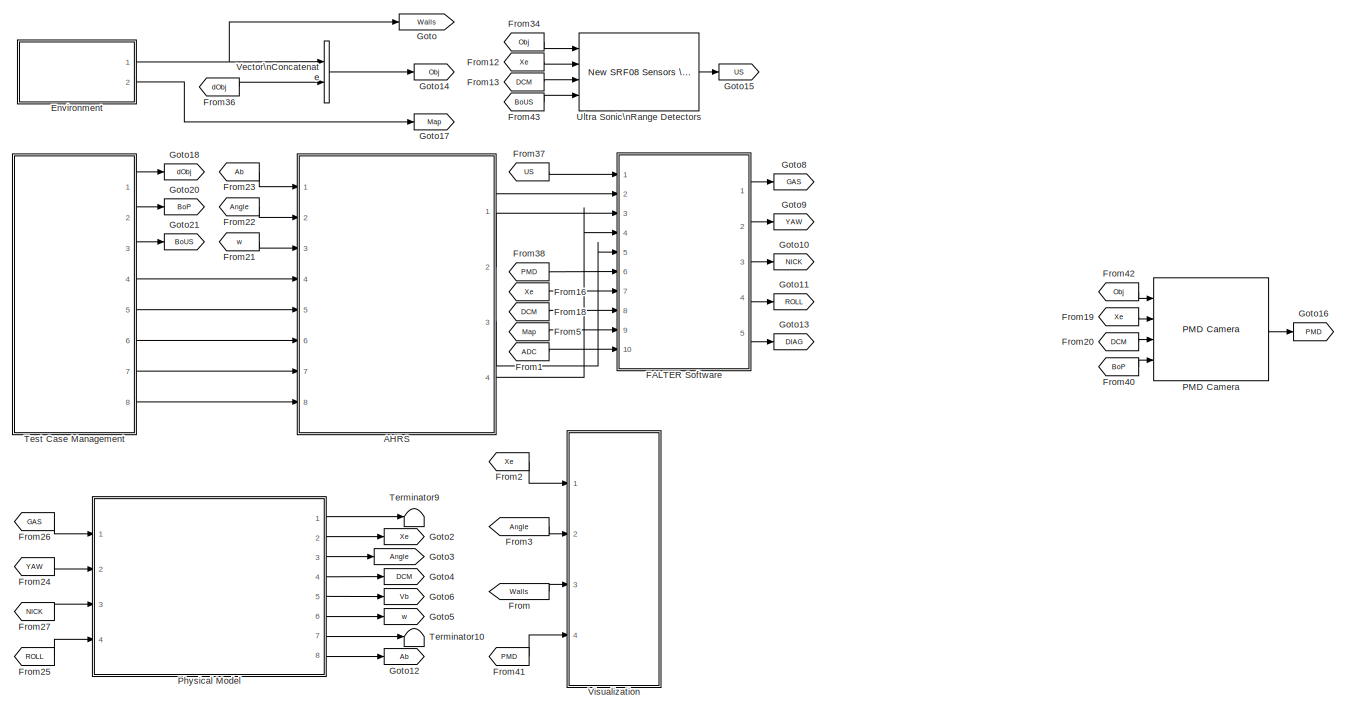
[diagram: root canvas - part 1/4, top center region]
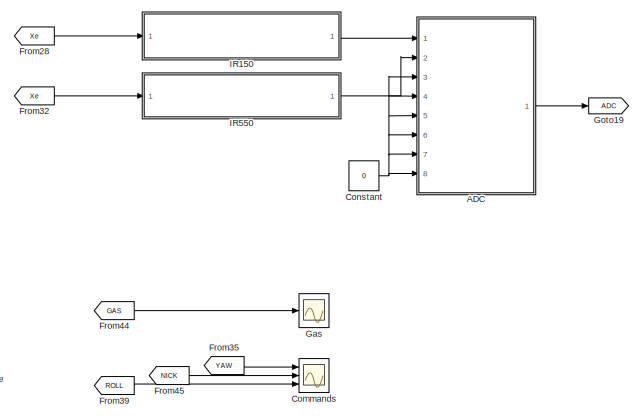
[diagram: root canvas - part 2/4, middle right region]
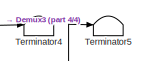
[diagram: root canvas - part 3/4, middle left region]
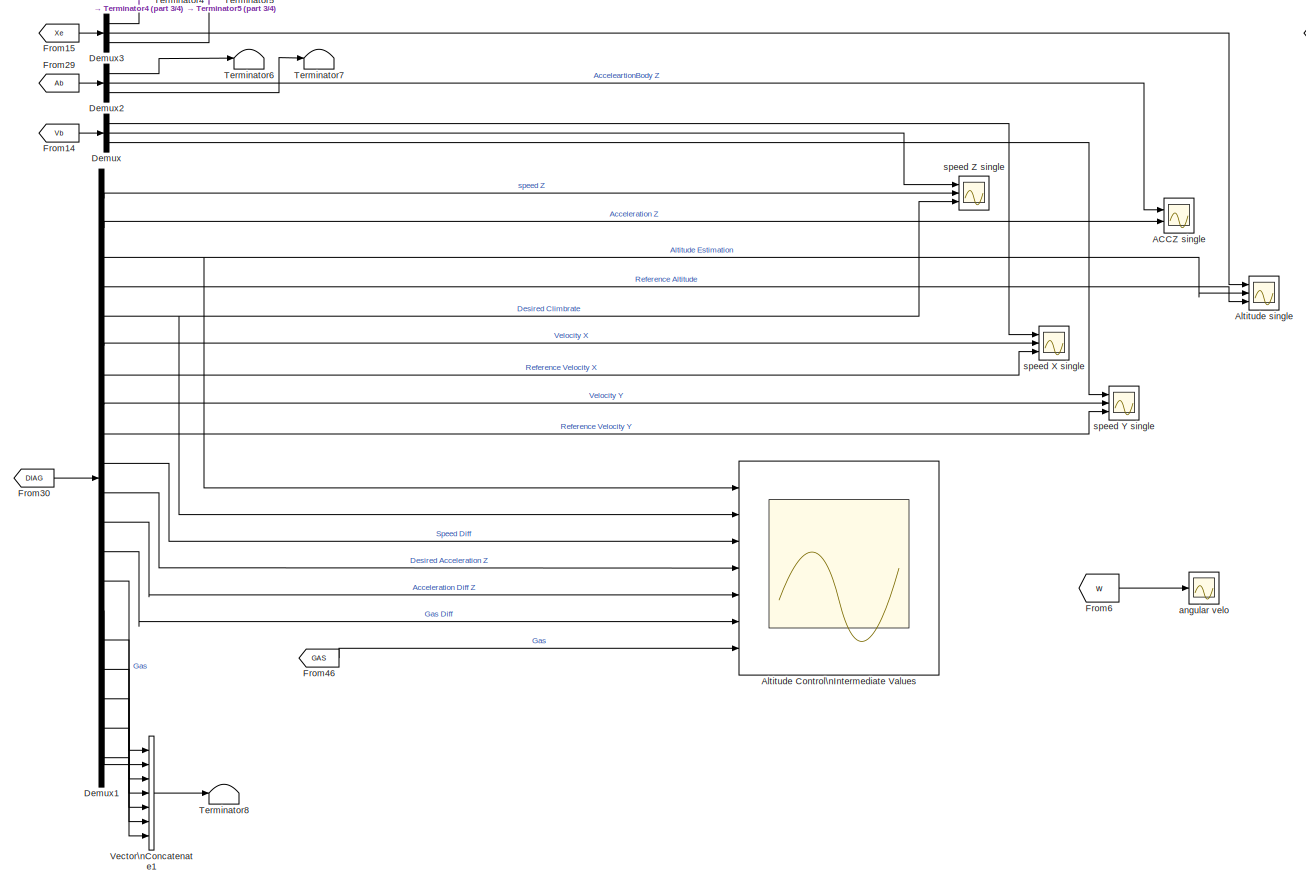
[diagram: root canvas - part 4/4, bottom center region]
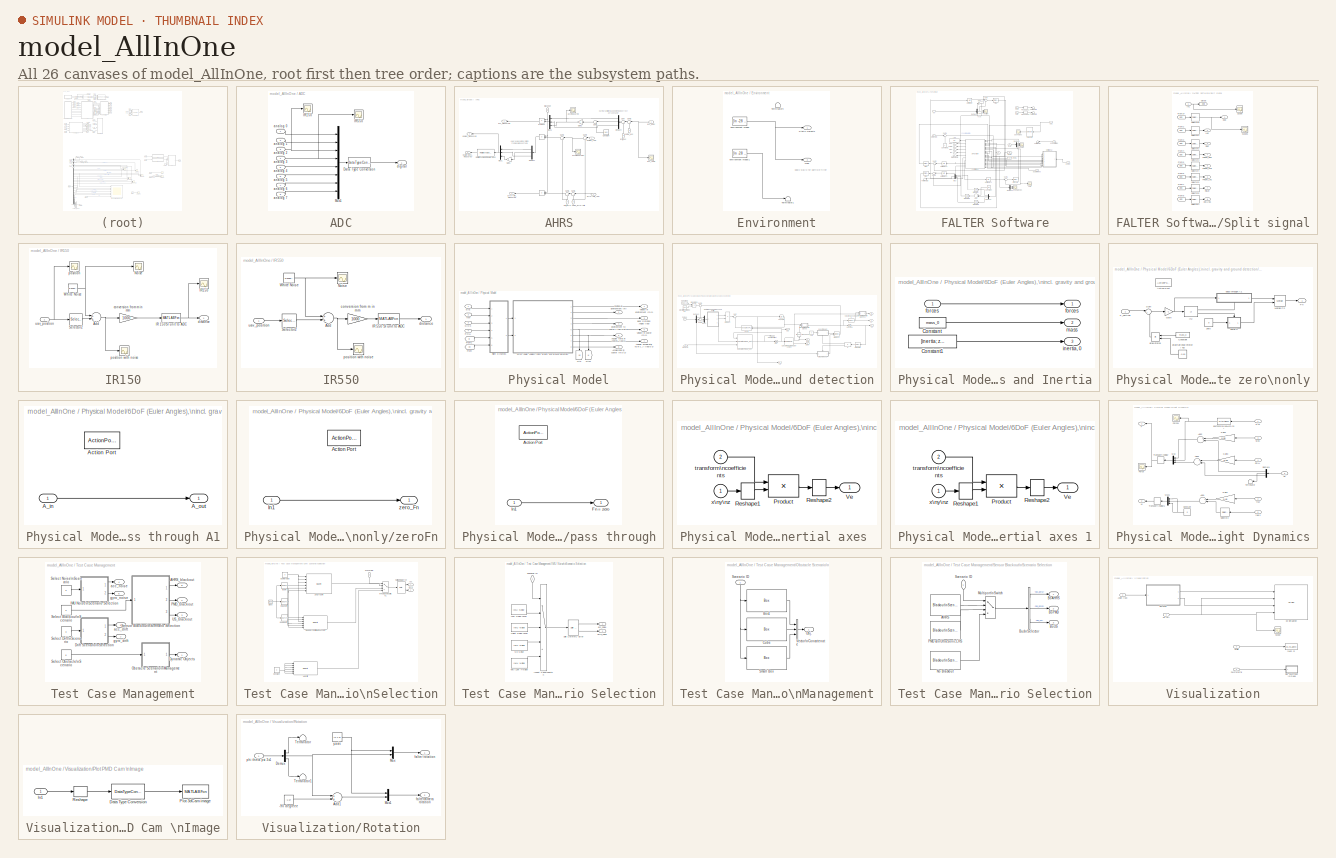
[diagram: thumbnail index - all 26 canvases of the model, root first then tree order]
MODEL model_AllInOne
KIND model
BLOCK [Scope] ACCZ single
  DataFormat = StructureWithTime
  Floating = off
  NumInputPorts = 2
  Ports = [2]
  SID = 2930
  SampleInput = on
  SampleTime = 0
  SaveName = ScopeData4
  ShowLegends = on
  TimeRange = 5
  YMax = -8.7~9.7343
  YMin = -9.9~9.7331
BLOCK [SubSystem] ADC
  Commented = on
  FunctionWithSeparateData = off
  MaskHideContents = off
  MinAlgLoopOccurrences = off
  Opaque = off
  Ports = [8, 1]
  PropExecContextOutsideSubsystem = off
  RTWSystemCode = Auto
  RequestExecContextInheritance = off
  SID = 2961
BLOCK [DataTypeConversion] ADC/Data Type Conversion
  OutDataTypeStr = uint32
  OutMax = 1023
  OutMin = 0
  RndMeth = Floor
  SID = 2995
  SaturateOnIntegerOverflow = off
BLOCK [Scope] ADC/IR150
  DataFormat = StructureWithTime
  Floating = off
  NumInputPorts = 1
  Ports = [1]
  SID = 3001
  SampleInput = on
  SampleTime = 0
  SaveName = ScopeData9
  ShowLegends = off
  TimeRange = 7.5
  YMax = 0
  YMin = -0.85
BLOCK [Scope] ADC/IR550
  DataFormat = StructureWithTime
  Floating = off
  NumInputPorts = 1
  Ports = [1]
  SID = 3000
  SampleInput = on
  SampleTime = 0
  SaveName = ScopeData6
  ShowLegends = off
  TimeRange = 7.5
  YMax = 0
  YMin = -0.85
BLOCK [Mux] ADC/Mux1
  DisplayOption = bar
  Inputs = 8
  Ports = [8, 1]
  SID = 2973
BLOCK [Inport] ADC/analog 0
  IconDisplay = Port number
  SID = 2962
BLOCK [Inport] ADC/analog 1
  IconDisplay = Port number
  Port = 2
  SID = 2964
BLOCK [Inport] ADC/analog 2
  IconDisplay = Port number
  Port = 3
  SID = 2965
BLOCK [Inport] ADC/analog 3
  IconDisplay = Port number
  Port = 4
  SID = 2966
BLOCK [Inport] ADC/analog 4
  IconDisplay = Port number
  Port = 5
  SID = 2967
BLOCK [Inport] ADC/analog 5
  IconDisplay = Port number
  Port = 6
  SID = 2968
BLOCK [Inport] ADC/analog 6
  IconDisplay = Port number
  Port = 7
  SID = 2969
BLOCK [Inport] ADC/analog 7
  IconDisplay = Port number
  Port = 8
  SID = 2970
BLOCK [Outport] ADC/digital
  IconDisplay = Port number
  SID = 2963
BLOCK [SubSystem] AHRS
  FunctionWithSeparateData = off
  MaskHideContents = off
  MinAlgLoopOccurrences = off
  Opaque = off
  Ports = [8, 4]
  PropExecContextOutsideSubsystem = off
  RTWSystemCode = Auto
  RequestExecContextInheritance = off
  SID = 641
BLOCK [Product] AHRS/ 
  InputSameDT = off
  OutDataTypeStr = Inherit: Inherit via internal rule
  Ports = [2, 1]
  SID = 739
  SaturateOnIntegerOverflow = off
BLOCK [Product] AHRS/   
  InputSameDT = off
  OutDataTypeStr = Inherit: Inherit via internal rule
  Ports = [2, 1]
  SID = 738
  SaturateOnIntegerOverflow = off
BLOCK [Inport] AHRS/Blackout
  IconDisplay = Port number
  Port = 8
  SID = 726
BLOCK [Constant] AHRS/Constant
  SID = 3080
  Value = 9.81
BLOCK [Demux] AHRS/Demux1
  DisplayOption = bar
  Outputs = 3
  Ports = [1, 3]
  SID = 2940
BLOCK [Demux] AHRS/Demux4
  DisplayOption = bar
  Outputs = 3
  Ports = [1, 3]
  SID = 589
BLOCK [Gain] AHRS/Gain1
  Gain = -1
  OutDataTypeStr = Inherit: Inherit via internal rule
  ParamDataTypeStr = Inherit: Inherit via internal rule
  SID = 3122
  SaturateOnIntegerOverflow = off
BLOCK [Gain] AHRS/Gain2
  Gain = -1
  OutDataTypeStr = Inherit: Inherit via internal rule
  ParamDataTypeStr = Inherit: Inherit via internal rule
  SID = 3086
  SaturateOnIntegerOverflow = off
BLOCK [Mux] AHRS/Mux1
  DisplayOption = bar
  Inputs = 3
  Ports = [3, 1]
  SID = 2941
BLOCK [Mux] AHRS/Mux5
  DisplayOption = bar
  Inputs = 3
  Ports = [3, 1]
  SID = 591
BLOCK [Product] AHRS/Product
  InputSameDT = off
  OutDataTypeStr = Inherit: Inherit via internal rule
  Ports = [2, 1]
  SID = 735
  SaturateOnIntegerOverflow = off
BLOCK [Reference] AHRS/Rotation Angles to Quaternions  REF=aerolibtransform2/Rotation Angles to Quaternions
  AttributesFormatString = Rotation Order: %<rotationOrder>
  Ports = [1, 1]
  SID = 2938
  SourceBlock = aerolibtransform2/Rotation Angles to Quaternions
  SourceType = Ang2Quat
  rotationOrder = XYZ
BLOCK [Sum] AHRS/Sum
  IconShape = round
  InputSameDT = off
  Inputs = |++
  OutDataTypeStr = Inherit: Inherit via internal rule
  Ports = [2, 1]
  SID = 592
  SaturateOnIntegerOverflow = off
BLOCK [Sum] AHRS/Sum1
  IconShape = round
  InputSameDT = off
  Inputs = |++
  OutDataTypeStr = Inherit: Inherit via internal rule
  Ports = [2, 1]
  SID = 3079
  SaturateOnIntegerOverflow = off
BLOCK [Sum] AHRS/Sum2
  IconShape = round
  InputSameDT = off
  Inputs = |++
  OutDataTypeStr = Inherit: Inherit via internal rule
  Ports = [2, 1]
  SID = 734
  SaturateOnIntegerOverflow = off
BLOCK [Sum] AHRS/Sum3
  IconShape = round
  InputSameDT = off
  Inputs = |++
  OutDataTypeStr = Inherit: Inherit via internal rule
  Ports = [2, 1]
  SID = 736
  SaturateOnIntegerOverflow = off
BLOCK [Sum] AHRS/Sum4
  IconShape = round
  InputSameDT = off
  Inputs = |++
  OutDataTypeStr = Inherit: Inherit via internal rule
  Ports = [2, 1]
  SID = 737
  SaturateOnIntegerOverflow = off
BLOCK [Sum] AHRS/Sum5
  IconShape = round
  InputSameDT = off
  Inputs = |++
  OutDataTypeStr = Inherit: Inherit via internal rule
  Ports = [2, 1]
  SID = 740
  SaturateOnIntegerOverflow = off
BLOCK [Sum] AHRS/Sum6
  IconShape = round
  InputSameDT = off
  Inputs = |++
  OutDataTypeStr = Inherit: Inherit via internal rule
  Ports = [2, 1]
  SID = 741
  SaturateOnIntegerOverflow = off
BLOCK [Scope] AHRS/acc measured
  DataFormat = StructureWithTime
  Floating = off
  NumInputPorts = 1
  Ports = [1]
  SID = 3082
  SampleInput = on
  SampleTime = 0
  SaveName = ScopeData1
  ShowLegends = off
  TimeRange = 7.5
  YMax = -5
  YMin = -11
BLOCK [Scope] AHRS/acc measured1
  DataFormat = StructureWithTime
  Floating = off
  NumInputPorts = 1
  Ports = [1]
  SID = 3153
  SampleInput = on
  SampleTime = 0
  SaveName = ScopeData18
  ShowLegends = off
  TimeRange = 7.5
  YMax = -5
  YMin = -11
BLOCK [Inport] AHRS/acc_body
  IconDisplay = Port number
  SID = 642
BLOCK [Outport] AHRS/acc_measured
  IconDisplay = Port number
  SID = 643
BLOCK [Scope] AHRS/acc_real1
  DataFormat = StructureWithTime
  Floating = off
  NumInputPorts = 1
  Ports = [1]
  SID = 3081
  SampleInput = on
  SampleTime = 0
  ShowLegends = off
  TimeRange = 7.5
  YMax = 0
  YMin = -0.85
BLOCK [Outport] AHRS/angles_measured
  IconDisplay = Port number
  Port = 2
  SID = 645
BLOCK [Inport] AHRS/angles_real
  IconDisplay = Port number
  Port = 2
  SID = 644
BLOCK [Inport] AHRS/drift_acc
  IconDisplay = Port number
  Port = 6
  SID = 723
BLOCK [Inport] AHRS/drift_gyro
  IconDisplay = Port number
  Port = 7
  SID = 725
BLOCK [Outport] AHRS/gyro-rate_measured
  IconDisplay = Port number
  Port = 4
  SID = 657
BLOCK [Inport] AHRS/gyro-rate_real
  IconDisplay = Port number
  Port = 3
  SID = 654
BLOCK [Inport] AHRS/noise_acc
  IconDisplay = Port number
  Port = 4
  SID = 721
BLOCK [Inport] AHRS/noise_gyro-rate
  IconDisplay = Port number
  Port = 5
  SID = 722
BLOCK [Outport] AHRS/quaternions_measured
  IconDisplay = Port number
  Port = 3
  SID = 2939
BLOCK [Scope] Altitude Control\nIntermediate Values
  DataFormat = StructureWithTime
  Floating = off
  NumInputPorts = 7
  Ports = [7]
  SID = 3101
  SampleInput = on
  SampleTime = 0
  SaveName = ScopeData16
  ShowLegends = on
  TimeRange = 20
  YMax = 1.3~0.5~0.5~0.3~0.3~0.00015~150
  YMin = 0.1~-0.2~-0.9~-0.5~-0.4~-0.00015~0
BLOCK [Scope] Altitude single
  DataFormat = StructureWithTime
  Floating = off
  NumInputPorts = 3
  Ports = [3]
  SID = 2935
  SampleInput = on
  SampleTime = 0
  SaveName = ScopeData7
  ShowLegends = off
  TimeRange = 15
  YMax = 1.3~1.3~1
  YMin = 0.1~0.1~0
BLOCK [Scope] Commands
  DataFormat = StructureWithTime
  Floating = off
  NumInputPorts = 3
  Ports = [3]
  SID = 3025
  SampleInput = on
  SampleTime = 0
  SaveName = ScopeData32
  ShowLegends = off
  YMax = 3.25~0.8~1
  YMin = 0~0.1~0
BLOCK [Constant] Constant
  Commented = on
  SID = 3284
  Value = 0
BLOCK [Demux] Demux
  DisplayOption = bar
  Outputs = 3
  Ports = [1, 3]
  SID = 2811
BLOCK [Demux] Demux1
  DisplayOption = bar
  Outputs = 20
  Ports = [1, 20]
  SID = 2812
BLOCK [Demux] Demux2
  DisplayOption = bar
  Outputs = 3
  Ports = [1, 3]
  SID = 2813
BLOCK [Demux] Demux3
  DisplayOption = bar
  Outputs = 3
  Ports = [1, 3]
  SID = 2814
BLOCK [SubSystem] Environment
  FunctionWithSeparateData = off
  MaskHideContents = off
  MinAlgLoopOccurrences = off
  Opaque = off
  Ports = [0, 2]
  PropExecContextOutsideSubsystem = off
  RTWSystemCode = Auto
  RequestExecContextInheritance = off
  SID = 226
BLOCK [Outport] Environment/Static Objects
  IconDisplay = Port number
  SID = 232
BLOCK [Terminator] Environment/Terminator1
  SID = 3335
BLOCK [Terminator] Environment/Terminator9
  Commented = on
  SID = 3283
BLOCK [Constant] Environment/environment model
  SID = 228
  Value = [\n   -28     0   -16    10     0     0     0     0    32;\n   -18     0    -5    36     0     0     0     0    10;\n    18     0   -16    10     0     0     0     0    32;\n    15     0     1     0     2     0     3     0     0;\n     8     0     1     0     2     0     6     0     0;\n     4     0     1     0     2     0     3     0     0;\n     1     0     1     0     2     0     2     0     0;...<+5703ch>
BLOCK [Constant] Environment/environment model1
  SID = 3254
  Value = [\n   -28     0   -16    10     0     0     0     0    32;\n   -18     0    -5    36     0     0     0     0    10;\n    18     0   -16    10     0     0     0     0    32;\n   -24     0     1     0     2     0    -4     0     0;\n   -24     0    -1     0     2     0    -4     0     0;\n   -24     0    -1     0     2     0     0     0   -15;\n   -22     0    -1     0     2     0     0     0   -15;...<+2283ch>
BLOCK [Outport] Environment/map
  IconDisplay = Port number
  Port = 2
  SID = 3255
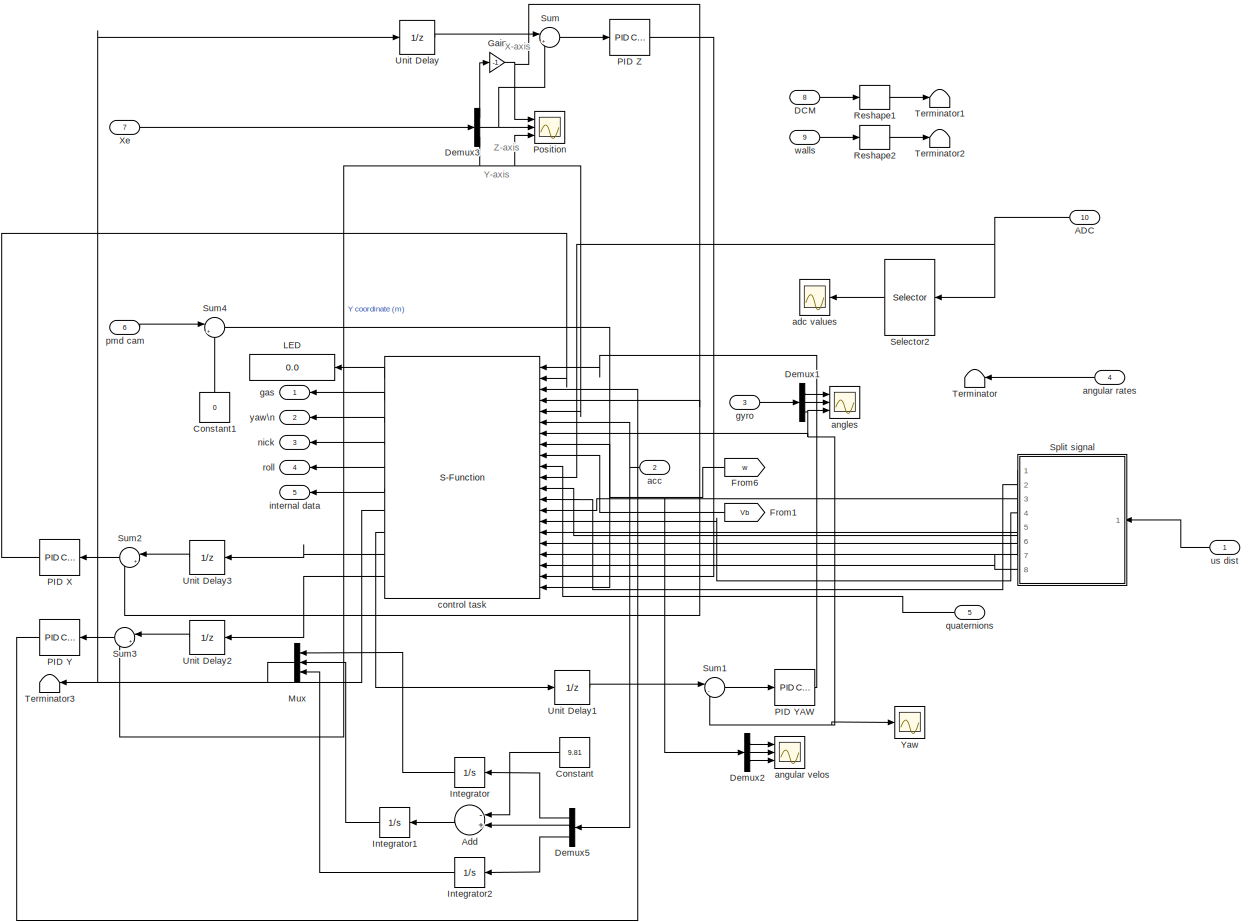
[diagram: FALTER Software - part 1/1, most of the canvas]
BLOCK [SubSystem] FALTER Software
  FunctionWithSeparateData = off
  MaskHideContents = off
  MinAlgLoopOccurrences = off
  Opaque = off
  Ports = [10, 5]
  PropExecContextOutsideSubsystem = off
  RTWSystemCode = Auto
  RequestExecContextInheritance = off
  SID = 234
BLOCK [Inport] FALTER Software/ADC
  IconDisplay = Port number
  OutDataTypeStr = uint32
  Port = 10
  SID = 2960
BLOCK [Sum] FALTER Software/Add
  InputSameDT = off
  Inputs = -+
  OutDataTypeStr = Inherit: Inherit via internal rule
  Ports = [2, 1]
  SID = 2920
  SaturateOnIntegerOverflow = off
BLOCK [Constant] FALTER Software/Constant
  SID = 2919
  Value = 9.81
BLOCK [Constant] FALTER Software/Constant1
  OutDataTypeStr = single
  SID = 3327
  Value = 0
  VectorParams1D = off
BLOCK [Inport] FALTER Software/DCM
  IconDisplay = Port number
  Port = 8
  SID = 2889
BLOCK [Demux] FALTER Software/Demux1
  DisplayOption = bar
  Outputs = 3
  Ports = [1, 3]
  SID = 3007
BLOCK [Demux] FALTER Software/Demux2
  DisplayOption = bar
  Outputs = 3
  Ports = [1, 3]
  SID = 3008
BLOCK [Demux] FALTER Software/Demux3
  DisplayOption = bar
  Outputs = 3
  Ports = [1, 3]
  SID = 3290
BLOCK [Demux] FALTER Software/Demux5
  DisplayOption = bar
  Outputs = 3
  Ports = [1, 3]
  SID = 2918
BLOCK [From] FALTER Software/From1
  GotoTag = Vb
  SID = 602
  TagVisibility = global
BLOCK [From] FALTER Software/From6
  GotoTag = w
  SID = 618
  TagVisibility = global
BLOCK [Gain] FALTER Software/Gain
  Gain = -1
  OutDataTypeStr = Inherit: Inherit via internal rule
  ParamDataTypeStr = Inherit: Inherit via internal rule
  SID = 3331
  SaturateOnIntegerOverflow = off
BLOCK [Integrator] FALTER Software/Integrator
  Ports = [1, 1]
  SID = 2915
BLOCK [Integrator] FALTER Software/Integrator1
  Ports = [1, 1]
  SID = 2916
BLOCK [Integrator] FALTER Software/Integrator2
  Ports = [1, 1]
  SID = 2917
BLOCK [Display] FALTER Software/LED
  Decimation = 1
  Lockdown = off
  Ports = [1]
  SID = 250
BLOCK [Mux] FALTER Software/Mux
  DisplayOption = bar
  Inputs = 3
  Ports = [3, 1]
  SID = 2921
BLOCK [Reference] FALTER Software/PID X  REF=simulink/Continuous/PID Controller
  AntiWindupMode = none
  Controller = PID
  D = 1000
  DOutDataTypeStr = Inherit: Inherit via internal rule
  DOutMax = []
  DOutMin = []
  DParamDataTypeStr = Inherit: Inherit via internal rule
  DParamMax = []
  DParamMin = []
  ExternalReset = none
  FilterContinuousStateAttributes = ''
  FilterMethod = Forward Euler
  FilterOutDataTypeStr = Inherit: Inherit via internal rule
  FilterOutMax = []
  FilterOutMin = []
  FilterRTWStateStorageClass = Auto
  FilterStateMustResolveToSignalObject = off
  Form = Parallel
  I = 2055
  IOutDataTypeStr = Inherit: Inherit via internal rule
  IOutMax = []
  IOutMin = []
  IParamDataTypeStr = Inherit: Inherit via internal rule
  IParamMax = []
  IParamMin = []
  IgnoreLimit = off
  InitialConditionForFilter = 0
  InitialConditionForIntegrator = 0
  InitialConditionSource = internal
  IntegratorContinuousStateAttributes = ''
  IntegratorMethod = Forward Euler
  IntegratorOutDataTypeStr = Inherit: Inherit via internal rule
  IntegratorOutMax = []
  IntegratorOutMin = []
  IntegratorRTWStateStorageClass = Auto
  IntegratorStateMustResolveToSignalObject = off
  Kb = 1
  KbOutDataTypeStr = Inherit: Inherit via internal rule
  KbOutMax = []
  KbOutMin = []
  KbParamDataTypeStr = Inherit: Inherit via internal rule
  KbParamMax = []
  KbParamMin = []
  Kt = 1
  KtOutDataTypeStr = Inherit: Inherit via internal rule
  KtOutMax = []
  KtOutMin = []
  KtParamDataTypeStr = Inherit: Inherit via internal rule
  KtParamMax = []
  KtParamMin = []
  LimitOutput = on
  LinearizeAsGain = on
  LockScale = off
  LowerSaturationLimit = -200
  N = 100
  NOutDataTypeStr = Inherit: Inherit via internal rule
  NOutMax = []
  NOutMin = []
  NParamDataTypeStr = Inherit: Inherit via internal rule
  NParamMax = []
  NParamMin = []
  P = 2800
  POutDataTypeStr = Inherit: Inherit via internal rule
  POutMax = []
  POutMin = []
  PParamDataTypeStr = Inherit: Inherit via internal rule
  PParamMax = []
  PParamMin = []
  Ports = [1, 1]
  RndMeth = Floor
  SID = 3316
  SampleTime = -1
  SaturateOnIntegerOverflow = off
  SaturationOutDataTypeStr = Inherit: Same as input
  SaturationOutMax = []
  SaturationOutMin = []
  SourceBlock = simulink/Continuous/PID Controller
  SourceType = PID 1dof
  SumAccumDataTypeStr = Inherit: Inherit via internal rule
  SumDAccumDataTypeStr = Inherit: Inherit via internal rule
  SumDOutDataTypeStr = Inherit: Inherit via internal rule
  SumDOutMax = []
  SumDOutMin = []
  SumI1AccumDataTypeStr = Inherit: Inherit via internal rule
  SumI1OutDataTypeStr = Inherit: Inherit via internal rule
  SumI1OutMax = []
  SumI1OutMin = []
  SumI2AccumDataTypeStr = Inherit: Inherit via internal rule
  SumI2OutDataTypeStr = Inherit: Inherit via internal rule
  SumI2OutMax = []
  SumI2OutMin = []
  SumI3AccumDataTypeStr = Inherit: Inherit via internal rule
  SumI3OutDataTypeStr = Inherit: Inherit via internal rule
  SumI3OutMax = []
  SumI3OutMin = []
  SumOutDataTypeStr = Inherit: Inherit via internal rule
  SumOutMax = []
  SumOutMin = []
  TimeDomain = Continuous-time
  TrackingMode = off
  UpperSaturationLimit = 200
  ZeroCross = on
BLOCK [Reference] FALTER Software/PID Y  REF=simulink/Continuous/PID Controller
  AntiWindupMode = none
  Controller = PID
  D = 1000
  DOutDataTypeStr = Inherit: Inherit via internal rule
  DOutMax = []
  DOutMin = []
  DParamDataTypeStr = Inherit: Inherit via internal rule
  DParamMax = []
  DParamMin = []
  ExternalReset = none
  FilterContinuousStateAttributes = ''
  FilterMethod = Forward Euler
  FilterOutDataTypeStr = Inherit: Inherit via internal rule
  FilterOutMax = []
  FilterOutMin = []
  FilterRTWStateStorageClass = Auto
  FilterStateMustResolveToSignalObject = off
  Form = Parallel
  I = 2055
  IOutDataTypeStr = Inherit: Inherit via internal rule
  IOutMax = []
  IOutMin = []
  IParamDataTypeStr = Inherit: Inherit via internal rule
  IParamMax = []
  IParamMin = []
  IgnoreLimit = off
  InitialConditionForFilter = 0
  InitialConditionForIntegrator = 0
  InitialConditionSource = internal
  IntegratorContinuousStateAttributes = ''
  IntegratorMethod = Forward Euler
  IntegratorOutDataTypeStr = Inherit: Inherit via internal rule
  IntegratorOutMax = []
  IntegratorOutMin = []
  IntegratorRTWStateStorageClass = Auto
  IntegratorStateMustResolveToSignalObject = off
  Kb = 1
  KbOutDataTypeStr = Inherit: Inherit via internal rule
  KbOutMax = []
  KbOutMin = []
  KbParamDataTypeStr = Inherit: Inherit via internal rule
  KbParamMax = []
  KbParamMin = []
  Kt = 1
  KtOutDataTypeStr = Inherit: Inherit via internal rule
  KtOutMax = []
  KtOutMin = []
  KtParamDataTypeStr = Inherit: Inherit via internal rule
  KtParamMax = []
  KtParamMin = []
  LimitOutput = on
  LinearizeAsGain = on
  LockScale = off
  LowerSaturationLimit = -200
  N = 100
  NOutDataTypeStr = Inherit: Inherit via internal rule
  NOutMax = []
  NOutMin = []
  NParamDataTypeStr = Inherit: Inherit via internal rule
  NParamMax = []
  NParamMin = []
  P = 2800
  POutDataTypeStr = Inherit: Inherit via internal rule
  POutMax = []
  POutMin = []
  PParamDataTypeStr = Inherit: Inherit via internal rule
  PParamMax = []
  PParamMin = []
  Ports = [1, 1]
  RndMeth = Floor
  SID = 3317
  SampleTime = -1
  SaturateOnIntegerOverflow = off
  SaturationOutDataTypeStr = Inherit: Same as input
  SaturationOutMax = []
  SaturationOutMin = []
  SourceBlock = simulink/Continuous/PID Controller
  SourceType = PID 1dof
  SumAccumDataTypeStr = Inherit: Inherit via internal rule
  SumDAccumDataTypeStr = Inherit: Inherit via internal rule
  SumDOutDataTypeStr = Inherit: Inherit via internal rule
  SumDOutMax = []
  SumDOutMin = []
  SumI1AccumDataTypeStr = Inherit: Inherit via internal rule
  SumI1OutDataTypeStr = Inherit: Inherit via internal rule
  SumI1OutMax = []
  SumI1OutMin = []
  SumI2AccumDataTypeStr = Inherit: Inherit via internal rule
  SumI2OutDataTypeStr = Inherit: Inherit via internal rule
  SumI2OutMax = []
  SumI2OutMin = []
  SumI3AccumDataTypeStr = Inherit: Inherit via internal rule
  SumI3OutDataTypeStr = Inherit: Inherit via internal rule
  SumI3OutMax = []
  SumI3OutMin = []
  SumOutDataTypeStr = Inherit: Inherit via internal rule
  SumOutMax = []
  SumOutMin = []
  TimeDomain = Continuous-time
  TrackingMode = off
  UpperSaturationLimit = 200
  ZeroCross = on
BLOCK [Reference] FALTER Software/PID YAW  REF=simulink/Continuous/PID Controller
  AntiWindupMode = clamping
  Controller = PID
  D = 120
  DOutDataTypeStr = Inherit: Inherit via internal rule
  DOutMax = []
  DOutMin = []
  DParamDataTypeStr = Inherit: Inherit via internal rule
  DParamMax = []
  DParamMin = []
  ExternalReset = none
  FilterContinuousStateAttributes = ''
  FilterMethod = Forward Euler
  FilterOutDataTypeStr = Inherit: Inherit via internal rule
  FilterOutMax = []
  FilterOutMin = []
  FilterRTWStateStorageClass = Auto
  FilterStateMustResolveToSignalObject = off
  Form = Parallel
  I = 130
  IOutDataTypeStr = Inherit: Inherit via internal rule
  IOutMax = []
  IOutMin = []
  IParamDataTypeStr = Inherit: Inherit via internal rule
  IParamMax = []
  IParamMin = []
  IgnoreLimit = off
  InitialConditionForFilter = 0
  InitialConditionForIntegrator = 0
  InitialConditionSource = internal
  IntegratorContinuousStateAttributes = ''
  IntegratorMethod = Forward Euler
  IntegratorOutDataTypeStr = Inherit: Inherit via internal rule
  IntegratorOutMax = []
  IntegratorOutMin = []
  IntegratorRTWStateStorageClass = Auto
  IntegratorStateMustResolveToSignalObject = off
  Kb = 1
  KbOutDataTypeStr = Inherit: Inherit via internal rule
  KbOutMax = []
  KbOutMin = []
  KbParamDataTypeStr = Inherit: Inherit via internal rule
  KbParamMax = []
  KbParamMin = []
  Kt = 1
  KtOutDataTypeStr = Inherit: Inherit via internal rule
  KtOutMax = []
  KtOutMin = []
  KtParamDataTypeStr = Inherit: Inherit via internal rule
  KtParamMax = []
  KtParamMin = []
  LimitOutput = on
  LinearizeAsGain = on
  LockScale = off
  LowerSaturationLimit = -100
  N = 100
  NOutDataTypeStr = Inherit: Inherit via internal rule
  NOutMax = []
  NOutMin = []
  NParamDataTypeStr = Inherit: Inherit via internal rule
  NParamMax = []
  NParamMin = []
  P = 320
  POutDataTypeStr = Inherit: Inherit via internal rule
  POutMax = []
  POutMin = []
  PParamDataTypeStr = Inherit: Inherit via internal rule
  PParamMax = []
  PParamMin = []
  Ports = [1, 1]
  RndMeth = Floor
  SID = 3307
  SampleTime = 1
  SaturateOnIntegerOverflow = off
  SaturationOutDataTypeStr = Inherit: Same as input
  SaturationOutMax = []
  SaturationOutMin = []
  SourceBlock = simulink/Continuous/PID Controller
  SourceType = PID 1dof
  SumAccumDataTypeStr = Inherit: Inherit via internal rule
  SumDAccumDataTypeStr = Inherit: Inherit via internal rule
  SumDOutDataTypeStr = Inherit: Inherit via internal rule
  SumDOutMax = []
  SumDOutMin = []
  SumI1AccumDataTypeStr = Inherit: Inherit via internal rule
  SumI1OutDataTypeStr = Inherit: Inherit via internal rule
  SumI1OutMax = []
  SumI1OutMin = []
  SumI2AccumDataTypeStr = Inherit: Inherit via internal rule
  SumI2OutDataTypeStr = Inherit: Inherit via internal rule
  SumI2OutMax = []
  SumI2OutMin = []
  SumI3AccumDataTypeStr = Inherit: Inherit via internal rule
  SumI3OutDataTypeStr = Inherit: Inherit via internal rule
  SumI3OutMax = []
  SumI3OutMin = []
  SumOutDataTypeStr = Inherit: Inherit via internal rule
  SumOutMax = []
  SumOutMin = []
  TimeDomain = Continuous-time
  TrackingMode = off
  UpperSaturationLimit = 100
  ZeroCross = on
BLOCK [Reference] FALTER Software/PID Z  REF=simulink/Continuous/PID Controller
  AntiWindupMode = none
  Controller = PID
  D = 100
  DOutDataTypeStr = Inherit: Inherit via internal rule
  DOutMax = []
  DOutMin = []
  DParamDataTypeStr = Inherit: Inherit via internal rule
  DParamMax = []
  DParamMin = []
  ExternalReset = none
  FilterContinuousStateAttributes = ''
  FilterMethod = Forward Euler
  FilterOutDataTypeStr = Inherit: Inherit via internal rule
  FilterOutMax = []
  FilterOutMin = []
  FilterRTWStateStorageClass = Auto
  FilterStateMustResolveToSignalObject = off
  Form = Parallel
  I = 350
  IOutDataTypeStr = Inherit: Inherit via internal rule
  IOutMax = []
  IOutMin = []
  IParamDataTypeStr = Inherit: Inherit via internal rule
  IParamMax = []
  IParamMin = []
  IgnoreLimit = off
  InitialConditionForFilter = 0
  InitialConditionForIntegrator = 0
  InitialConditionSource = internal
  IntegratorContinuousStateAttributes = ''
  IntegratorMethod = Forward Euler
  IntegratorOutDataTypeStr = Inherit: Inherit via internal rule
  IntegratorOutMax = []
  IntegratorOutMin = []
  IntegratorRTWStateStorageClass = Auto
  IntegratorStateMustResolveToSignalObject = off
  Kb = 1
  KbOutDataTypeStr = Inherit: Inherit via internal rule
  KbOutMax = []
  KbOutMin = []
  KbParamDataTypeStr = Inherit: Inherit via internal rule
  KbParamMax = []
  KbParamMin = []
  Kt = 1
  KtOutDataTypeStr = Inherit: Inherit via internal rule
  KtOutMax = []
  KtOutMin = []
  KtParamDataTypeStr = Inherit: Inherit via internal rule
  KtParamMax = []
  KtParamMin = []
  LimitOutput = off
  LinearizeAsGain = on
  LockScale = off
  LowerSaturationLimit = 0
  N = 100
  NOutDataTypeStr = Inherit: Inherit via internal rule
  NOutMax = []
  NOutMin = []
  NParamDataTypeStr = Inherit: Inherit via internal rule
  NParamMax = []
  NParamMin = []
  P = 250
  POutDataTypeStr = Inherit: Inherit via internal rule
  POutMax = []
  POutMin = []
  PParamDataTypeStr = Inherit: Inherit via internal rule
  PParamMax = []
  PParamMin = []
  Ports = [1, 1]
  RndMeth = Floor
  SID = 3300
  SampleTime = 1
  SaturateOnIntegerOverflow = off
  SaturationOutDataTypeStr = Inherit: Same as input
  SaturationOutMax = []
  SaturationOutMin = []
  SourceBlock = simulink/Continuous/PID Controller
  SourceType = PID 1dof
  SumAccumDataTypeStr = Inherit: Inherit via internal rule
  SumDAccumDataTypeStr = Inherit: Inherit via internal rule
  SumDOutDataTypeStr = Inherit: Inherit via internal rule
  SumDOutMax = []
  SumDOutMin = []
  SumI1AccumDataTypeStr = Inherit: Inherit via internal rule
  SumI1OutDataTypeStr = Inherit: Inherit via internal rule
  SumI1OutMax = []
  SumI1OutMin = []
  SumI2AccumDataTypeStr = Inherit: Inherit via internal rule
  SumI2OutDataTypeStr = Inherit: Inherit via internal rule
  SumI2OutMax = []
  SumI2OutMin = []
  SumI3AccumDataTypeStr = Inherit: Inherit via internal rule
  SumI3OutDataTypeStr = Inherit: Inherit via internal rule
  SumI3OutMax = []
  SumI3OutMin = []
  SumOutDataTypeStr = Inherit: Inherit via internal rule
  SumOutMax = []
  SumOutMin = []
  TimeDomain = Continuous-time
  TrackingMode = off
  UpperSaturationLimit = inf
  ZeroCross = on
BLOCK [Scope] FALTER Software/Position
  DataFormat = StructureWithTime
  Floating = off
  NumInputPorts = 3
  Ports = [3]
  SID = 3291
  SampleInput = on
  SampleTime = 0
  SaveName = ScopeData19
  ShowLegends = off
  TickLabels = on
  TimeRange = 8
  YMax = 1.5~1.5~1.5
  YMin = 0~0~0
BLOCK [Reshape] FALTER Software/Reshape1
  OutputDimensionality = Row vector (2-D)
  Ports = [1, 1]
  SID = 2898
BLOCK [Reshape] FALTER Software/Reshape2
  OutputDimensionality = Row vector (2-D)
  Ports = [1, 1]
  SID = 2899
BLOCK [Selector] FALTER Software/Selector2
  IndexMode = Zero-based
  IndexOptions = Index vector (dialog)
  Indices = [2 3 4]
  InputPortWidth = 8
  OutputSizes = 1
  Ports = [1, 1]
  SID = 3222
BLOCK [SubSystem] FALTER Software/Split signal
  FunctionWithSeparateData = off
  MaskHideContents = off
  MinAlgLoopOccurrences = off
  Opaque = off
  Ports = [1, 8]
  PropExecContextOutsideSubsystem = off
  RTWSystemCode = Auto
  RequestExecContextInheritance = off
  SID = 251
BLOCK [Outport] FALTER Software/Split signal/CEILING
  IconDisplay = Port number
  Port = 8
  SID = 268
BLOCK [Outport] FALTER Software/Split signal/FRONT_CTR
  IconDisplay = Port number
  Port = 5
  SID = 265
BLOCK [Outport] FALTER Software/Split signal/FRONT_LHS
  IconDisplay = Port number
  Port = 6
  SID = 266
BLOCK [Outport] FALTER Software/Split signal/FRONT_RHS
  IconDisplay = Port number
  Port = 4
  SID = 264
BLOCK [From] FALTER Software/Split signal/From2
  GotoTag = dists
  SID = 2830
BLOCK [From] FALTER Software/Split signal/From3
  GotoTag = dists
  SID = 2831
BLOCK [From] FALTER Software/Split signal/From37
  GotoTag = dists
  SID = 2801
BLOCK [From] FALTER Software/Split signal/From4
  GotoTag = dists
  SID = 2832
BLOCK [From] FALTER Software/Split signal/From5
  GotoTag = dists
  SID = 2833
BLOCK [From] FALTER Software/Split signal/From6
  GotoTag = dists
  SID = 2834
BLOCK [From] FALTER Software/Split signal/From7
  GotoTag = dists
  SID = 2835
BLOCK [From] FALTER Software/Split signal/From8
  GotoTag = dists
  SID = 2836
BLOCK [Outport] FALTER Software/Split signal/GND
  IconDisplay = Port number
  SID = 261
BLOCK [Goto] FALTER Software/Split signal/Goto8
  GotoTag = dists
  SID = 2800
BLOCK [Inport] FALTER Software/Split signal/In1
  IconDisplay = Port number
  SID = 2780
  VarSizeSig = No
BLOCK [Outport] FALTER Software/Split signal/LHS
  IconDisplay = Port number
  Port = 2
  SID = 262
BLOCK [Outport] FALTER Software/Split signal/REAR
  IconDisplay = Port number
  Port = 7
  SID = 267
BLOCK [Outport] FALTER Software/Split signal/RHS
  IconDisplay = Port number
  Port = 3
  SID = 263
BLOCK [Scope] FALTER Software/Split signal/Scope
  DataFormat = StructureWithTime
  Floating = off
  NumInputPorts = 1
  Ports = [1]
  SID = 2837
  SampleTime = 0
  SaveName = ScopeData13
  ShowLegends = off
  YMax = 5e+274
  YMin = -5e+275
BLOCK [Scope] FALTER Software/Split signal/Scope1
  DataFormat = StructureWithTime
  Floating = off
  NumInputPorts = 1
  Ports = [1]
  SID = 3097
  SampleTime = 0
  SaveName = ScopeData2
  ShowLegends = off
  YMax = 5e+274
  YMin = -5e+275
BLOCK [Selector] FALTER Software/Split signal/Selector1
  IndexOptions = Index vector (dialog),Select all
  Indices = 2,1
  InputPortWidth = 3
  NumberOfDimensions = 2
  OutputSizes = 1,1
  Ports = [1, 1]
  SID = 2781
BLOCK [Selector] FALTER Software/Split signal/Selector2
  IndexOptions = Index vector (dialog),Select all
  Indices = 3,1
  InputPortWidth = 3
  NumberOfDimensions = 2
  OutputSizes = 1,1
  Ports = [1, 1]
  SID = 255
BLOCK [Selector] FALTER Software/Split signal/Selector3
  IndexOptions = Index vector (dialog),Select all
  Indices = 4,1
  InputPortWidth = 3
  NumberOfDimensions = 2
  OutputSizes = 1,1
  Ports = [1, 1]
  SID = 256
BLOCK [Selector] FALTER Software/Split signal/Selector4
  IndexOptions = Index vector (dialog),Select all
  Indices = 5,1
  InputPortWidth = 3
  NumberOfDimensions = 2
  OutputSizes = 1,1
  Ports = [1, 1]
  SID = 257
BLOCK [Selector] FALTER Software/Split signal/Selector5
  IndexOptions = Index vector (dialog),Select all
  Indices = 6,1
  InputPortWidth = 3
  NumberOfDimensions = 2
  OutputSizes = 1,1
  Ports = [1, 1]
  SID = 258
BLOCK [Selector] FALTER Software/Split signal/Selector6
  IndexOptions = Index vector (dialog),Select all
  Indices = 7,1
  InputPortWidth = 3
  NumberOfDimensions = 2
  OutputSizes = 1,1
  Ports = [1, 1]
  SID = 259
BLOCK [Selector] FALTER Software/Split signal/Selector7
  IndexOptions = Index vector (dialog),Select all
  Indices = 8,1
  InputPortWidth = 3
  NumberOfDimensions = 2
  OutputSizes = 1,1
  Ports = [1, 1]
  SID = 260
BLOCK [Selector] FALTER Software/Split signal/Selector8
  IndexOptions = Index vector (dialog),Select all
  Indices = 1,1
  InputPortWidth = 3
  NumberOfDimensions = 2
  OutputSizes = 1,1
  Ports = [1, 1]
  SID = 2782
BLOCK [Sum] FALTER Software/Sum
  IconShape = round
  InputSameDT = off
  Inputs = |+-
  OutDataTypeStr = Inherit: Inherit via internal rule
  Ports = [2, 1]
  SID = 3296
  SaturateOnIntegerOverflow = off
BLOCK [Sum] FALTER Software/Sum1
  IconShape = round
  InputSameDT = off
  Inputs = |-+
  OutDataTypeStr = Inherit: Inherit via internal rule
  Ports = [2, 1]
  SID = 3308
  SaturateOnIntegerOverflow = off
BLOCK [Sum] FALTER Software/Sum2
  IconShape = round
  InputSameDT = off
  Inputs = |+-
  OutDataTypeStr = Inherit: Inherit via internal rule
  Ports = [2, 1]
  SID = 3318
  SaturateOnIntegerOverflow = off
BLOCK [Sum] FALTER Software/Sum3
  IconShape = round
  InputSameDT = off
  Inputs = |+-
  OutDataTypeStr = Inherit: Inherit via internal rule
  Ports = [2, 1]
  SID = 3319
  SaturateOnIntegerOverflow = off
BLOCK [Sum] FALTER Software/Sum4
  IconShape = round
  InputSameDT = off
  Inputs = |+-
  OutDataTypeStr = Inherit: Inherit via internal rule
  Ports = [2, 1]
  SID = 3326
  SaturateOnIntegerOverflow = off
BLOCK [Terminator] FALTER Software/Terminator
  SID = 3215
BLOCK [Terminator] FALTER Software/Terminator1
  SID = 3339
BLOCK [Terminator] FALTER Software/Terminator2
  SID = 3340
BLOCK [Terminator] FALTER Software/Terminator3
  SID = 3341
BLOCK [UnitDelay] FALTER Software/Unit Delay
  InputProcessing = Elements as channels (sample based)
  SID = 3303
  SampleTime = -1
BLOCK [UnitDelay] FALTER Software/Unit Delay1
  InputProcessing = Elements as channels (sample based)
  SID = 3313
  SampleTime = -1
BLOCK [UnitDelay] FALTER Software/Unit Delay2
  InputProcessing = Elements as channels (sample based)
  SID = 3314
  SampleTime = -1
BLOCK [UnitDelay] FALTER Software/Unit Delay3
  InputProcessing = Elements as channels (sample based)
  SID = 3315
  SampleTime = -1
BLOCK [Inport] FALTER Software/Xe
  IconDisplay = Port number
  Port = 7
  SID = 2871
BLOCK [Scope] FALTER Software/Yaw
  DataFormat = StructureWithTime
  Floating = off
  NumInputPorts = 1
  Ports = [1]
  SID = 3338
  SampleTime = 0
  SaveName = ScopeData20
  ShowLegends = off
  TickLabels = on
  TimeRange = 8
  YMax = 1.2
  YMin = 0
BLOCK [Inport] FALTER Software/acc
  IconDisplay = Port number
  Port = 2
  SID = 236
BLOCK [Scope] FALTER Software/adc values
  DataFormat = StructureWithTime
  Floating = off
  NumInputPorts = 1
  Ports = [1]
  SID = 3012
  SampleInput = on
  SampleTime = 0
  SaveName = ScopeData28
  ShowLegends = off
  TimeRange = 7.5
  YMax = 0
  YMin = -0.85
BLOCK [Scope] FALTER Software/angles
  DataFormat = StructureWithTime
  Floating = off
  NumInputPorts = 3
  Ports = [3]
  SID = 3006
  SampleInput = on
  SampleTime = 0
  SaveName = ScopeData17
  ShowLegends = off
  TimeRange = 1.544175576814856
  YMax = 0~1~4.965
  YMin = -0.85~-1~4.89
BLOCK [Inport] FALTER Software/angular rates
  IconDisplay = Port number
  Port = 4
  SID = 617
BLOCK [Scope] FALTER Software/angular velos
  DataFormat = StructureWithTime
  Floating = off
  NumInputPorts = 3
  Ports = [3]
  SID = 3009
  SampleInput = on
  SampleTime = 0
  SaveName = ScopeData26
  ShowLegends = off
  TimeRange = 7.5
  YMax = 0~5~5
  YMin = -0.85~-5~-5
BLOCK [S-Function] FALTER Software/control task
  EnableBusSupport = off
  FunctionName = control
  Ports = [21, 10]
  SID = 270
BLOCK [Outport] FALTER Software/gas
  IconDisplay = Port number
  SID = 274
BLOCK [Inport] FALTER Software/gyro
  IconDisplay = Port number
  Port = 3
  SID = 237
BLOCK [Outport] FALTER Software/internal data
  IconDisplay = Port number
  Port = 5
  SID = 278
BLOCK [Outport] FALTER Software/nick
  IconDisplay = Port number
  Port = 3
  SID = 276
BLOCK [Inport] FALTER Software/pmd cam
  IconDisplay = Port number
  Port = 6
  SID = 719
BLOCK [Inport] FALTER Software/quaternions
  IconDisplay = Port number
  Port = 5
  SID = 2942
BLOCK [Outport] FALTER Software/roll
  IconDisplay = Port number
  Port = 4
  SID = 277
BLOCK [Inport] FALTER Software/us dist
  IconDisplay = Port number
  SID = 235
BLOCK [Inport] FALTER Software/walls
  IconDisplay = Port number
  Port = 9
  SID = 2890
BLOCK [Outport] FALTER Software/yaw\n
  IconDisplay = Port number
  Port = 2
  SID = 275
BLOCK [From] From
  GotoTag = Walls
  SID = 138
BLOCK [From] From1
  GotoTag = ADC
  SID = 3275
BLOCK [From] From12
  GotoTag = Xe
  SID = 279
BLOCK [From] From13
  GotoTag = DCM
  SID = 280
BLOCK [From] From14
  GotoTag = Vb
  SID = 2815
  TagVisibility = global
BLOCK [From] From15
  GotoTag = Xe
  SID = 2816
BLOCK [From] From16
  GotoTag = Xe
  SID = 2872
BLOCK [From] From18
  GotoTag = DCM
  SID = 2891
BLOCK [From] From19
  GotoTag = Xe
  SID = 608
BLOCK [From] From2
  GotoTag = Xe
  SID = 165
BLOCK [From] From20
  GotoTag = DCM
  SID = 609
BLOCK [From] From21
  GotoTag = w
  SID = 658
  TagVisibility = global
BLOCK [From] From22
  GotoTag = Angle
  SID = 788
BLOCK [From] From23
  GotoTag = Ab
  SID = 661
BLOCK [From] From24
  GotoTag = YAW
  SID = 662
BLOCK [From] From25
  GotoTag = ROLL
  SID = 663
BLOCK [From] From26
  GotoTag = GAS
  SID = 664
BLOCK [From] From27
  GotoTag = NICK
  SID = 665
BLOCK [From] From28
  GotoTag = Xe
  SID = 2977
BLOCK [From] From29
  GotoTag = Ab
  SID = 2818
BLOCK [From] From3
  GotoTag = Angle
  SID = 166
BLOCK [From] From30
  GotoTag = DIAG
  SID = 2819
BLOCK [From] From32
  GotoTag = Xe
  SID = 2992
BLOCK [From] From34
  GotoTag = Obj
  SID = 784
BLOCK [From] From35
  GotoTag = YAW
  SID = 3018
BLOCK [From] From36
  GotoTag = dObj
  SID = 785
BLOCK [From] From37
  GotoTag = US
  SID = 2783
BLOCK [From] From38
  GotoTag = PMD
  SID = 744
BLOCK [From] From39
  GotoTag = ROLL
  SID = 3019
BLOCK [From] From40
  GotoTag = BoP
  SID = 1738
BLOCK [From] From41
  GotoTag = PMD
  SID = 782
BLOCK [From] From42
  GotoTag = Obj
  SID = 783
BLOCK [From] From43
  GotoTag = BoUS
  SID = 1846
BLOCK [From] From44
  GotoTag = GAS
  SID = 3020
BLOCK [From] From45
  GotoTag = NICK
  SID = 3021
BLOCK [From] From46
  GotoTag = GAS
  SID = 3111
BLOCK [From] From5
  GotoTag = Map
  SID = 3263
BLOCK [From] From6
  GotoTag = w
  SID = 3272
  TagVisibility = global
BLOCK [Scope] Gas
  DataFormat = StructureWithTime
  Floating = off
  NumInputPorts = 1
  Ports = [1]
  SID = 3024
  SampleInput = on
  SampleTime = 0
  SaveName = ScopeData31
  ShowLegends = off
  TimeRange = 18
  YMax = 300
  YMin = 0
BLOCK [Goto] Goto
  GotoTag = Walls
  SID = 283
BLOCK [Goto] Goto10
  GotoTag = NICK
  SID = 285
BLOCK [Goto] Goto11
  GotoTag = ROLL
  SID = 286
BLOCK [Goto] Goto12
  GotoTag = Ab
  SID = 660
BLOCK [Goto] Goto13
  GotoTag = DIAG
  SID = 668
BLOCK [Goto] Goto14
  GotoTag = Obj
  SID = 711
BLOCK [Goto] Goto15
  GotoTag = US
  SID = 2777
BLOCK [Goto] Goto16
  GotoTag = PMD
  SID = 745
BLOCK [Goto] Goto17
  GotoTag = Map
  SID = 3259
BLOCK [Goto] Goto18
  GotoTag = dObj
  SID = 760
BLOCK [Goto] Goto19
  GotoTag = ADC
  SID = 3279
BLOCK [Goto] Goto2
  GotoTag = Xe
  SID = 287
BLOCK [Goto] Goto20
  GotoTag = BoP
  SID = 1688
BLOCK [Goto] Goto21
  GotoTag = BoUS
  SID = 1689
BLOCK [Goto] Goto3
  GotoTag = Angle
  SID = 288
BLOCK [Goto] Goto4
  GotoTag = DCM
  SID = 289
BLOCK [Goto] Goto5
  GotoTag = w
  SID = 290
  TagVisibility = global
BLOCK [Goto] Goto6
  GotoTag = Vb
  SID = 291
  TagVisibility = global
BLOCK [Goto] Goto8
  GotoTag = GAS
  SID = 293
BLOCK [Goto] Goto9
  GotoTag = YAW
  SID = 294
BLOCK [SubSystem] IR150
  FunctionWithSeparateData = off
  MaskHideContents = off
  MinAlgLoopOccurrences = off
  Opaque = off
  Ports = [1, 1]
  PropExecContextOutsideSubsystem = off
  RTWSystemCode = Auto
  RequestExecContextInheritance = off
  SID = 2943
BLOCK [Sum] IR150/Add
  InputSameDT = off
  OutDataTypeStr = Inherit: Inherit via internal rule
  Ports = [2, 1]
  SID = 2949
  SaturateOnIntegerOverflow = off
BLOCK [MATLABFcn] IR150/IR 150SI unit to ADC
  MATLABFcn = ir150_inverse
  Ports = [1, 1]
  SID = 2974
BLOCK [Scope] IR150/IR150
  DataFormat = StructureWithTime
  Floating = off
  NumInputPorts = 1
  Ports = [1]
  SID = 3005
  SampleInput = on
  SampleTime = 0
  SaveName = ScopeData15
  ShowLegends = off
  TimeRange = 7.5
  YMax = 0
  YMin = -0.85
BLOCK [Scope] IR150/Noise
  DataFormat = StructureWithTime
  Floating = off
  NumInputPorts = 1
  Ports = [1]
  SID = 3002
  SampleInput = on
  SampleTime = 0
  SaveName = ScopeData10
  ShowLegends = off
  TimeRange = 7.5
  YMax = 0
  YMin = -0.85
  ZoomMode = xonly
BLOCK [Selector] IR150/Selector2
  IndexMode = Zero-based
  IndexOptions = Index vector (dialog)
  Indices = [1]
  InputPortWidth = 3
  OutputSizes = 1
  Ports = [1, 1]
  SID = 2980
BLOCK [RandomNumber] IR150/White Noise
  DisableCoverage = on
  SID = 3010
  SampleTime = 0
  Seed = 234987234
  Variance = 0.0001
BLOCK [Gain] IR150/conversion from m in mm
  Gain = 1000
  OutDataTypeStr = Inherit: Inherit via internal rule
  ParamDataTypeStr = Inherit: Inherit via internal rule
  SID = 3013
  SaturateOnIntegerOverflow = off
BLOCK [Outport] IR150/distance
  IconDisplay = Port number
  SID = 2945
BLOCK [Scope] IR150/position
  DataFormat = StructureWithTime
  Floating = off
  NumInputPorts = 1
  Ports = [1]
  SID = 3003
  SampleInput = on
  SampleTime = 0
  SaveName = ScopeData11
  ShowLegends = off
  TimeRange = 7.5
  YMax = 0
  YMin = -0.85
BLOCK [Scope] IR150/position with noise
  DataFormat = StructureWithTime
  Floating = off
  NumInputPorts = 1
  Ports = [1]
  SID = 3004
  SampleInput = on
  SampleTime = 0
  SaveName = ScopeData12
  ShowLegends = off
  TimeRange = 7.5
  YMax = 0
  YMin = -0.85
BLOCK [Inport] IR150/uav_position
  IconDisplay = Port number
  SID = 2944
BLOCK [SubSystem] IR550
  FunctionWithSeparateData = off
  MaskHideContents = off
  MinAlgLoopOccurrences = off
  Opaque = off
  Ports = [1, 1]
  PropExecContextOutsideSubsystem = off
  RTWSystemCode = Auto
  RequestExecContextInheritance = off
  SID = 2984
BLOCK [Sum] IR550/Add
  InputSameDT = off
  OutDataTypeStr = Inherit: Inherit via internal rule
  Ports = [2, 1]
  SID = 2987
  SaturateOnIntegerOverflow = off
BLOCK [MATLABFcn] IR550/IR 550 SI unit to ADC
  MATLABFcn = ir550_inverse
  Ports = [1, 1]
  SID = 2989
BLOCK [Scope] IR550/Noise
  DataFormat = StructureWithTime
  Floating = off
  NumInputPorts = 1
  Ports = [1]
  SID = 3016
  SampleInput = on
  SampleTime = 0
  SaveName = ScopeData29
  ShowLegends = off
  TimeRange = 7.5
  YMax = 0
  YMin = -0.85
BLOCK [Selector] IR550/Selector2
  IndexMode = Zero-based
  IndexOptions = Index vector (dialog)
  Indices = [1]
  InputPortWidth = 3
  OutputSizes = 1
  Ports = [1, 1]
  SID = 2990
BLOCK [RandomNumber] IR550/White Noise
  DisableCoverage = on
  SID = 3015
  SampleTime = 0
  Seed = 234987234
  Variance = 0.0001
BLOCK [Gain] IR550/conversion from m in mm
  Gain = 1000
  OutDataTypeStr = Inherit: Inherit via internal rule
  ParamDataTypeStr = Inherit: Inherit via internal rule
  SID = 3014
  SaturateOnIntegerOverflow = off
BLOCK [Outport] IR550/distance
  IconDisplay = Port number
  SID = 2991
BLOCK [Scope] IR550/position with noise
  DataFormat = StructureWithTime
  Floating = off
  NumInputPorts = 1
  Ports = [1]
  SID = 3017
  SampleInput = on
  SampleTime = 0
  SaveName = ScopeData30
  ShowLegends = off
  TimeRange = 7.5
  YMax = 0
  YMin = -0.85
BLOCK [Inport] IR550/uav_position
  IconDisplay = Port number
  SID = 2985
BLOCK [Reference] PMD Camera  REF=falter_library/PMD Camera
  Ports = [4, 1]
  SID = 3324
  SourceBlock = falter_library/PMD Camera
  a = [0 0 0 0 0 0]
  h = 32
  t = 1
  w = 24
BLOCK [SubSystem] Physical Model
  FunctionWithSeparateData = off
  MaskHideContents = off
  MinAlgLoopOccurrences = off
  Opaque = off
  Ports = [4, 8]
  PropExecContextOutsideSubsystem = off
  RTWSystemCode = Auto
  RequestExecContextInheritance = off
  SID = 298
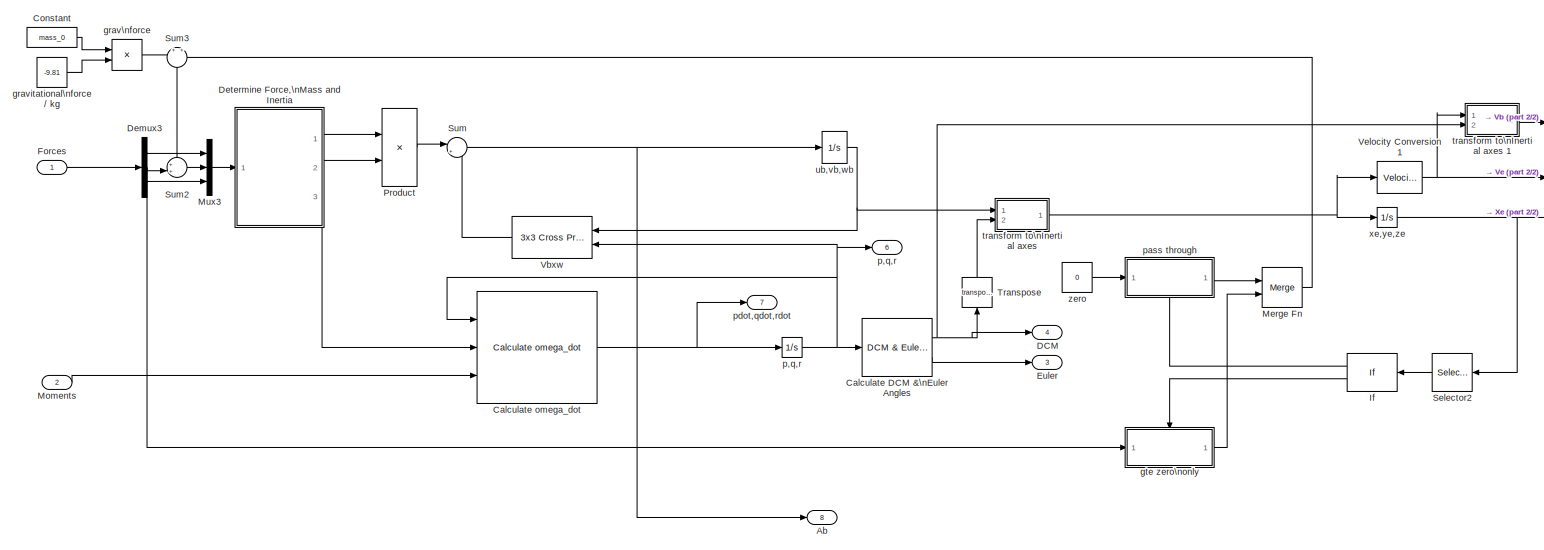
[diagram: Physical Model/6DoF (Euler Angles),\nincl. gravity and ground detection - part 1/2, most of the canvas]
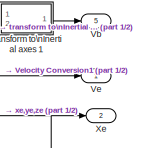
[diagram: Physical Model/6DoF (Euler Angles),\nincl. gravity and ground detection - part 2/2, middle right region]
BLOCK [SubSystem] Physical Model/6DoF (Euler Angles),\nincl. gravity and ground detection
  FunctionWithSeparateData = off
  MaskHideContents = off
  MinAlgLoopOccurrences = off
  Opaque = off
  Ports = [2, 8]
  PropExecContextOutsideSubsystem = off
  RTWSystemCode = Auto
  RequestExecContextInheritance = off
  SID = 672
BLOCK [Outport] Physical Model/6DoF (Euler Angles),\nincl. gravity and ground detection/Ab
  IconDisplay = Port number
  Port = 8
  SID = 672:34
BLOCK [Reference] Physical Model/6DoF (Euler Angles),\nincl. gravity and ground detection/Calculate DCM &\nEuler Angles  REF=aerolib6dofsys/DCM & Euler Angles (Euler)
  FunctionWithSeparateData = off
  GeneratePreprocessorConditionals = off
  Ports = [1, 2]
  SID = 672:3
  ShowPortLabels = FromPortIcon
  SourceBlock = aerolib6dofsys/DCM & Euler Angles (Euler)
  SourceType = DCM & Euler Angles (Euler)
  SystemSampleTime = -1
BLOCK [Reference] Physical Model/6DoF (Euler Angles),\nincl. gravity and ground detection/Calculate omega_dot  REF=aerolib6dofsys/Calculate omega_dot
  Ports = [3, 1]
  SID = 672:4
  SourceBlock = aerolib6dofsys/Calculate omega_dot
  SourceType = SubSystem
BLOCK [Constant] Physical Model/6DoF (Euler Angles),\nincl. gravity and ground detection/Constant
  OutDataTypeStr = Inherit: Inherit via back propagation
  SID = 672:224
  Value = mass_0
BLOCK [Outport] Physical Model/6DoF (Euler Angles),\nincl. gravity and ground detection/DCM
  IconDisplay = Port number
  Port = 4
  SID = 672:30
BLOCK [Demux] Physical Model/6DoF (Euler Angles),\nincl. gravity and ground detection/Demux3
  DisplayOption = bar
  Outputs = 3
  Ports = [1, 3]
  SID = 672:159
BLOCK [SubSystem] Physical Model/6DoF (Euler Angles),\nincl. gravity and ground detection/Determine Force,\nMass and Inertia
  FunctionWithSeparateData = off
  MaskHideContents = off
  MinAlgLoopOccurrences = off
  Opaque = off
  Ports = [1, 3]
  PropExecContextOutsideSubsystem = off
  RTWSystemCode = Auto
  RequestExecContextInheritance = off
  SID = 672:238
  TreatAsAtomicUnit = on
BLOCK [Constant] Physical Model/6DoF (Euler Angles),\nincl. gravity and ground detection/Determine Force,\nMass and Inertia/Constant
  OutDataTypeStr = Inherit: Inherit via back propagation
  SID = 672:241
  Value = mass_0
BLOCK [Constant] Physical Model/6DoF (Euler Angles),\nincl. gravity and ground detection/Determine Force,\nMass and Inertia/Constant1
  OutDataTypeStr = Inherit: Inherit via back propagation
  SID = 672:242
  Value = [inertia; zeros(3,3)]
BLOCK [Inport] Physical Model/6DoF (Euler Angles),\nincl. gravity and ground detection/Determine Force,\nMass and Inertia/forces
  IconDisplay = Port number
  SID = 672:239
BLOCK [Outport] Physical Model/6DoF (Euler Angles),\nincl. gravity and ground detection/Determine Force,\nMass and Inertia/forces 
  IconDisplay = Port number
  SID = 672:240
BLOCK [Outport] Physical Model/6DoF (Euler Angles),\nincl. gravity and ground detection/Determine Force,\nMass and Inertia/inertia, 0
  IconDisplay = Port number
  Port = 3
  SID = 672:244
BLOCK [Outport] Physical Model/6DoF (Euler Angles),\nincl. gravity and ground detection/Determine Force,\nMass and Inertia/mass
  IconDisplay = Port number
  Port = 2
  SID = 672:243
BLOCK [Outport] Physical Model/6DoF (Euler Angles),\nincl. gravity and ground detection/Euler
  IconDisplay = Port number
  Port = 3
  SID = 672:29
BLOCK [Inport] Physical Model/6DoF (Euler Angles),\nincl. gravity and ground detection/Forces
  IconDisplay = Port number
  SID = 672:1
BLOCK [If] Physical Model/6DoF (Euler Angles),\nincl. gravity and ground detection/If
  IfExpression = u1 > 0.12
  Ports = [1, 2]
  SID = 672:36
BLOCK [Merge] Physical Model/6DoF (Euler Angles),\nincl. gravity and ground detection/Merge Fn
  Ports = [2, 1]
  SID = 672:203
BLOCK [Inport] Physical Model/6DoF (Euler Angles),\nincl. gravity and ground detection/Moments
  IconDisplay = Port number
  Port = 2
  SID = 672:2
BLOCK [Mux] Physical Model/6DoF (Euler Angles),\nincl. gravity and ground detection/Mux3
  DisplayOption = bar
  Inputs = 3
  Ports = [3, 1]
  SID = 672:165
BLOCK [Product] Physical Model/6DoF (Euler Angles),\nincl. gravity and ground detection/Product
  InputSameDT = off
  Inputs = */
  Ports = [2, 1]
  RndMeth = Floor
  SID = 672:9
BLOCK [Selector] Physical Model/6DoF (Euler Angles),\nincl. gravity and ground detection/Selector2
  IndexMode = Zero-based
  IndexOptions = Index vector (dialog)
  Indices = [1]
  InputPortWidth = 3
  OutputSizes = 1
  Ports = [1, 1]
  SID = 672:228
BLOCK [Sum] Physical Model/6DoF (Euler Angles),\nincl. gravity and ground detection/Sum
  IconShape = round
  InputSameDT = off
  Inputs = |++
  OutDataTypeStr = Inherit: Inherit via internal rule
  Ports = [2, 1]
  SID = 672:10
BLOCK [Sum] Physical Model/6DoF (Euler Angles),\nincl. gravity and ground detection/Sum2
  IconShape = round
  InputSameDT = off
  Inputs = ++|
  OutDataTypeStr = Inherit: Inherit via internal rule
  Ports = [2, 1]
  SID = 672:223
  SaturateOnIntegerOverflow = off
BLOCK [Sum] Physical Model/6DoF (Euler Angles),\nincl. gravity and ground detection/Sum3
  IconShape = round
  InputSameDT = off
  Inputs = +|+
  OutDataTypeStr = Inherit: Inherit via internal rule
  Ports = [2, 1]
  SID = 672:204
  SaturateOnIntegerOverflow = off
BLOCK [Math] Physical Model/6DoF (Euler Angles),\nincl. gravity and ground detection/Transpose
  Operator = transpose
  Ports = [1, 1]
  SID = 672:11
BLOCK [Outport] Physical Model/6DoF (Euler Angles),\nincl. gravity and ground detection/Vb
  IconDisplay = Port number
  Port = 5
  SID = 672:31
BLOCK [Reference] Physical Model/6DoF (Euler Angles),\nincl. gravity and ground detection/Vbxw  REF=aerolibutil/3x3 Cross Product
  Ports = [2, 1]
  SID = 672:12
  SourceBlock = aerolibutil/3x3 Cross Product
  SourceType = CrossProduct
BLOCK [Outport] Physical Model/6DoF (Euler Angles),\nincl. gravity and ground detection/Ve
  IconDisplay = Port number
  SID = 672:27
BLOCK [Reference] Physical Model/6DoF (Euler Angles),\nincl. gravity and ground detection/Velocity Conversion1  REF=aerolibconvert2/Velocity Conversion
  IU = m/s
  OU = m/s
  Ports = [1, 1]
  SID = 672:14
  SourceBlock = aerolibconvert2/Velocity Conversion
  SourceType = Velocity Conversion
BLOCK [Outport] Physical Model/6DoF (Euler Angles),\nincl. gravity and ground detection/Xe
  IconDisplay = Port number
  Port = 2
  SID = 672:28
BLOCK [Product] Physical Model/6DoF (Euler Angles),\nincl. gravity and ground detection/grav\nforce
  InputSameDT = off
  OutDataTypeStr = Inherit: Inherit via internal rule
  Ports = [2, 1]
  SID = 672:225
  SaturateOnIntegerOverflow = off
BLOCK [Constant] Physical Model/6DoF (Euler Angles),\nincl. gravity and ground detection/gravitational\nforce // kg
  SID = 672:226
  Value = -9.81
BLOCK [SubSystem] Physical Model/6DoF (Euler Angles),\nincl. gravity and ground detection/gte zero\nonly
  FunctionWithSeparateData = off
  MaskHideContents = off
  MinAlgLoopOccurrences = off
  Opaque = off
  Ports = [1, 1, 0, 0, 0, 0, 0, 1]
  PropExecContextOutsideSubsystem = off
  RTWSystemCode = Auto
  RequestExecContextInheritance = off
  SID = 672:44
  TreatAsAtomicUnit = on
BLOCK [ActionPort] Physical Model/6DoF (Euler Angles),\nincl. gravity and ground detection/gte zero\nonly/Action Port
  ActionType = else
  SID = 672:46
BLOCK [Constant] Physical Model/6DoF (Euler Angles),\nincl. gravity and ground detection/gte zero\nonly/Constant
  OutDataTypeStr = Inherit: Inherit via back propagation
  SID = 672:181
  Value = mass_0
BLOCK [Inport] Physical Model/6DoF (Euler Angles),\nincl. gravity and ground detection/gte zero\nonly/F_vertical
  IconDisplay = Port number
  SID = 672:176
BLOCK [Outport] Physical Model/6DoF (Euler Angles),\nincl. gravity and ground detection/gte zero\nonly/Fn
  IconDisplay = Port number
  SID = 672:202
BLOCK [Gain] Physical Model/6DoF (Euler Angles),\nincl. gravity and ground detection/gte zero\nonly/Gain
  Gain = -1
  OutDataTypeStr = Inherit: Inherit via internal rule
  ParamDataTypeStr = Inherit: Inherit via internal rule
  SID = 672:201
  SaturateOnIntegerOverflow = off
BLOCK [If] Physical Model/6DoF (Euler Angles),\nincl. gravity and ground detection/gte zero\nonly/If2
  Ports = [1, 2]
  SID = 672:206
BLOCK [Merge] Physical Model/6DoF (Euler Angles),\nincl. gravity and ground detection/gte zero\nonly/Merge Fn
  Ports = [2, 1]
  SID = 672:216
BLOCK [Sum] Physical Model/6DoF (Euler Angles),\nincl. gravity and ground detection/gte zero\nonly/Sum
  IconShape = round
  InputSameDT = off
  Inputs = |++
  OutDataTypeStr = Inherit: Inherit via internal rule
  Ports = [2, 1]
  SID = 672:200
  SaturateOnIntegerOverflow = off
BLOCK [Product] Physical Model/6DoF (Euler Angles),\nincl. gravity and ground detection/gte zero\nonly/grav\nforce
  InputSameDT = off
  OutDataTypeStr = Inherit: Inherit via internal rule
  Ports = [2, 1]
  SID = 672:182
  SaturateOnIntegerOverflow = off
BLOCK [Constant] Physical Model/6DoF (Euler Angles),\nincl. gravity and ground detection/gte zero\nonly/gravitational\nforce // kg
  SID = 672:183
  Value = -9.81
BLOCK [SubSystem] Physical Model/6DoF (Euler Angles),\nincl. gravity and ground detection/gte zero\nonly/pass through A1
  FunctionWithSeparateData = off
  MaskHideContents = off
  MinAlgLoopOccurrences = off
  Opaque = off
  Ports = [1, 1, 0, 0, 0, 0, 0, 1]
  PropExecContextOutsideSubsystem = off
  RTWSystemCode = Auto
  RequestExecContextInheritance = off
  SID = 672:207
  TreatAsAtomicUnit = on
BLOCK [Inport] Physical Model/6DoF (Euler Angles),\nincl. gravity and ground detection/gte zero\nonly/pass through A1/A_in
  IconDisplay = Port number
  SID = 672:208
BLOCK [Outport] Physical Model/6DoF (Euler Angles),\nincl. gravity and ground detection/gte zero\nonly/pass through A1/A_out
  IconDisplay = Port number
  SID = 672:210
BLOCK [ActionPort] Physical Model/6DoF (Euler Angles),\nincl. gravity and ground detection/gte zero\nonly/pass through A1/Action Port
  ActionType = then
  SID = 672:209
BLOCK [Constant] Physical Model/6DoF (Euler Angles),\nincl. gravity and ground detection/gte zero\nonly/zero
  SID = 672:232
  Value = 0
BLOCK [SubSystem] Physical Model/6DoF (Euler Angles),\nincl. gravity and ground detection/gte zero\nonly/zeroFn
  FunctionWithSeparateData = off
  MaskHideContents = off
  MinAlgLoopOccurrences = off
  Opaque = off
  Ports = [1, 1, 0, 0, 0, 0, 0, 1]
  PropExecContextOutsideSubsystem = off
  RTWSystemCode = Auto
  RequestExecContextInheritance = off
  SID = 672:211
  TreatAsAtomicUnit = on
BLOCK [ActionPort] Physical Model/6DoF (Euler Angles),\nincl. gravity and ground detection/gte zero\nonly/zeroFn/Action Port
  ActionType = else
  SID = 672:212
BLOCK [Inport] Physical Model/6DoF (Euler Angles),\nincl. gravity and ground detection/gte zero\nonly/zeroFn/In1
  IconDisplay = Port number
  SID = 672:233
BLOCK [Outport] Physical Model/6DoF (Euler Angles),\nincl. gravity and ground detection/gte zero\nonly/zeroFn/zero_Fn
  IconDisplay = Port number
  SID = 672:214
BLOCK [Outport] Physical Model/6DoF (Euler Angles),\nincl. gravity and ground detection/p,q,r
  IconDisplay = Port number
  Port = 6
  SID = 672:32
BLOCK [Integrator] Physical Model/6DoF (Euler Angles),\nincl. gravity and ground detection/p,q,r 
  InitialCondition = pm_0
  Ports = [1, 1]
  SID = 672:17
BLOCK [SubSystem] Physical Model/6DoF (Euler Angles),\nincl. gravity and ground detection/pass through
  FunctionWithSeparateData = off
  MaskHideContents = off
  MinAlgLoopOccurrences = off
  Opaque = off
  Ports = [1, 1, 0, 0, 0, 0, 0, 1]
  PropExecContextOutsideSubsystem = off
  RTWSystemCode = Auto
  RequestExecContextInheritance = off
  SID = 672:37
  TreatAsAtomicUnit = on
BLOCK [ActionPort] Physical Model/6DoF (Euler Angles),\nincl. gravity and ground detection/pass through/Action Port
  ActionType = then
  SID = 672:39
BLOCK [Outport] Physical Model/6DoF (Euler Angles),\nincl. gravity and ground detection/pass through/Fn = zero
  IconDisplay = Port number
  SID = 672:170
BLOCK [Inport] Physical Model/6DoF (Euler Angles),\nincl. gravity and ground detection/pass through/In1
  IconDisplay = Port number
  SID = 672:234
BLOCK [Outport] Physical Model/6DoF (Euler Angles),\nincl. gravity and ground detection/pdot,qdot,rdot
  IconDisplay = Port number
  Port = 7
  SID = 672:33
BLOCK [SubSystem] Physical Model/6DoF (Euler Angles),\nincl. gravity and ground detection/transform to\nInertial axes 
  FunctionWithSeparateData = off
  MaskHideContents = off
  MinAlgLoopOccurrences = off
  Opaque = off
  Ports = [2, 1]
  PropExecContextOutsideSubsystem = off
  RTWSystemCode = Auto
  RequestExecContextInheritance = off
  SID = 672:18
  ShowPortLabels = none
BLOCK [Product] Physical Model/6DoF (Euler Angles),\nincl. gravity and ground detection/transform to\nInertial axes /Product
  Multiplication = Matrix(*)
  Ports = [2, 1]
  RndMeth = Floor
  SID = 672:21
BLOCK [Reshape] Physical Model/6DoF (Euler Angles),\nincl. gravity and ground detection/transform to\nInertial axes /Reshape1
  OutputDimensionality = Column vector (2-D)
  Ports = [1, 1]
  SID = 672:22
BLOCK [Reshape] Physical Model/6DoF (Euler Angles),\nincl. gravity and ground detection/transform to\nInertial axes /Reshape2
  Ports = [1, 1]
  SID = 672:23
BLOCK [Outport] Physical Model/6DoF (Euler Angles),\nincl. gravity and ground detection/transform to\nInertial axes /Ve
  IconDisplay = Port number
  SID = 672:24
BLOCK [Inport] Physical Model/6DoF (Euler Angles),\nincl. gravity and ground detection/transform to\nInertial axes /transform\ncoefficients
  IconDisplay = Port number
  Port = 2
  SID = 672:20
BLOCK [Inport] Physical Model/6DoF (Euler Angles),\nincl. gravity and ground detection/transform to\nInertial axes /x\ny\nz
  IconDisplay = Port number
  SID = 672:19
BLOCK [SubSystem] Physical Model/6DoF (Euler Angles),\nincl. gravity and ground detection/transform to\nInertial axes 1
  FunctionWithSeparateData = off
  MaskHideContents = off
  MinAlgLoopOccurrences = off
  Opaque = off
  Ports = [2, 1]
  PropExecContextOutsideSubsystem = off
  RTWSystemCode = Auto
  RequestExecContextInheritance = off
  SID = 672:66
  ShowPortLabels = none
BLOCK [Product] Physical Model/6DoF (Euler Angles),\nincl. gravity and ground detection/transform to\nInertial axes 1/Product
  Multiplication = Matrix(*)
  Ports = [2, 1]
  RndMeth = Floor
  SID = 672:69
BLOCK [Reshape] Physical Model/6DoF (Euler Angles),\nincl. gravity and ground detection/transform to\nInertial axes 1/Reshape1
  OutputDimensionality = Column vector (2-D)
  Ports = [1, 1]
  SID = 672:70
BLOCK [Reshape] Physical Model/6DoF (Euler Angles),\nincl. gravity and ground detection/transform to\nInertial axes 1/Reshape2
  Ports = [1, 1]
  SID = 672:71
BLOCK [Outport] Physical Model/6DoF (Euler Angles),\nincl. gravity and ground detection/transform to\nInertial axes 1/Ve
  IconDisplay = Port number
  SID = 672:72
BLOCK [Inport] Physical Model/6DoF (Euler Angles),\nincl. gravity and ground detection/transform to\nInertial axes 1/transform\ncoefficients
  IconDisplay = Port number
  Port = 2
  SID = 672:68
BLOCK [Inport] Physical Model/6DoF (Euler Angles),\nincl. gravity and ground detection/transform to\nInertial axes 1/x\ny\nz
  IconDisplay = Port number
  SID = 672:67
BLOCK [Integrator] Physical Model/6DoF (Euler Angles),\nincl. gravity and ground detection/ub,vb,wb
  InitialCondition = convvel(Vm_0,'m/s','m/s')
  Ports = [1, 1]
  SID = 672:25
BLOCK [Integrator] Physical Model/6DoF (Euler Angles),\nincl. gravity and ground detection/xe,ye,ze
  InitialCondition = xme_0
  Ports = [1, 1]
  SID = 672:26
BLOCK [Constant] Physical Model/6DoF (Euler Angles),\nincl. gravity and ground detection/zero
  SID = 672:175
  Value = 0
BLOCK [Outport] Physical Model/Acceleration in copter (m//s^2)
  IconDisplay = Port number
  Port = 8
  SID = 342
BLOCK [Outport] Physical Model/Angular accelerations in copter (rad//s^2)
  IconDisplay = Port number
  Port = 7
  SID = 341
BLOCK [Outport] Physical Model/Angular rates in copter (rad//s)
  IconDisplay = Port number
  Port = 6
  SID = 340
BLOCK [Outport] Physical Model/Body Rotation Angles (rad)
  IconDisplay = Port number
  Port = 3
  SID = 337
BLOCK [Outport] Physical Model/Environment to copter transformation matrix
  IconDisplay = Port number
  Port = 4
  SID = 338
BLOCK [SubSystem] Physical Model/Flight Dynamics
  FunctionWithSeparateData = off
  MaskHideContents = off
  MinAlgLoopOccurrences = off
  Opaque = off
  Ports = [6, 2]
  PropExecContextOutsideSubsystem = off
  RTWSystemCode = Auto
  RequestExecContextInheritance = off
  SID = 304
BLOCK [Sum] Physical Model/Flight Dynamics/Add1
  InputSameDT = off
  Inputs = +-
  OutDataTypeStr = Inherit: Inherit via internal rule
  Ports = [2, 1]
  SID = 312
  SaturateOnIntegerOverflow = off
BLOCK [Sum] Physical Model/Flight Dynamics/Add2
  InputSameDT = off
  Inputs = +-
  OutDataTypeStr = Inherit: Inherit via internal rule
  Ports = [2, 1]
  SID = 313
  SaturateOnIntegerOverflow = off
BLOCK [Sum] Physical Model/Flight Dynamics/Add3
  InputSameDT = off
  Inputs = +-
  OutDataTypeStr = Inherit: Inherit via internal rule
  Ports = [2, 1]
  SID = 314
  SaturateOnIntegerOverflow = off
BLOCK [Constant] Physical Model/Flight Dynamics/Constant
  SID = 315
  Value = 0
BLOCK [Demux] Physical Model/Flight Dynamics/Demux1
  DisplayOption = bar
  Outputs = 3
  Ports = [1, 3]
  SID = 318
BLOCK [Outport] Physical Model/Flight Dynamics/F
  IconDisplay = Port number
  SID = 327
BLOCK [Scope] Physical Model/Flight Dynamics/Force
  DataFormat = StructureWithTime
  Floating = off
  NumInputPorts = 1
  Ports = [1]
  SID = 630
  SampleInput = on
  SampleTime = 0
  SaveName = ScopeData8
  ShowLegends = off
  YMax = 27.5
  YMin = -15
  ZoomMode = xonly
BLOCK [Scope] Physical Model/Flight Dynamics/Force1
  DataFormat = StructureWithTime
  Floating = off
  NumInputPorts = 1
  Ports = [1]
  SID = 3030
  SampleInput = on
  SampleTime = 0
  SaveName = ScopeData33
  ShowLegends = off
  YMax = 15.5
  YMin = 11
  ZoomMode = yonly
BLOCK [Inport] Physical Model/Flight Dynamics/GAS
  IconDisplay = Port number
  SID = 305
BLOCK [Gain] Physical Model/Flight Dynamics/Gain1
  Gain = 0.45
  OutDataTypeStr = Inherit: Inherit via internal rule
  ParamDataTypeStr = Inherit: Inherit via internal rule
  SID = 320
  SaturateOnIntegerOverflow = off
BLOCK [Gain] Physical Model/Flight Dynamics/Gain2
  Gain = 0.05
  OutDataTypeStr = Inherit: Inherit via internal rule
  ParamDataTypeStr = Inherit: Inherit via internal rule
  SID = 321
  SaturateOnIntegerOverflow = off
BLOCK [Gain] Physical Model/Flight Dynamics/Gain3
  Gain = 0.03
  OutDataTypeStr = Inherit: Inherit via internal rule
  ParamDataTypeStr = Inherit: Inherit via internal rule
  SID = 322
  SaturateOnIntegerOverflow = off
BLOCK [Outport] Physical Model/Flight Dynamics/M
  IconDisplay = Port number
  Port = 2
  SID = 328
BLOCK [Mux] Physical Model/Flight Dynamics/Mux
  DisplayOption = bar
  Inputs = 3
  Ports = [3, 1]
  SID = 323
BLOCK [Mux] Physical Model/Flight Dynamics/Mux1
  DisplayOption = bar
  Inputs = 3
  Ports = [3, 1]
  SID = 324
BLOCK [Inport] Physical Model/Flight Dynamics/NICK
  IconDisplay = Port number
  Port = 3
  SID = 307
BLOCK [Inport] Physical Model/Flight Dynamics/ROLL
  IconDisplay = Port number
  Port = 4
  SID = 308
BLOCK [Selector] Physical Model/Flight Dynamics/Selector2
  IndexMode = Zero-based
  IndexOptions = Index vector (dialog)
  Indices = [1]
  InputPortWidth = 3
  OutputSizes = 1
  Ports = [1, 1]
  SID = 3227
BLOCK [Terminator] Physical Model/Flight Dynamics/Terminator
  SID = 3230
BLOCK [TransportDelay] Physical Model/Flight Dynamics/Transport\nDelay
  DelayTime = 0.005
  Ports = [1, 1]
  SID = 325
BLOCK [TransportDelay] Physical Model/Flight Dynamics/Transport\nDelay1
  DelayTime = 0.005
  Ports = [1, 1]
  SID = 326
BLOCK [Inport] Physical Model/Flight Dynamics/Vb
  IconDisplay = Port number
  Port = 6
  SID = 310
BLOCK [Inport] Physical Model/Flight Dynamics/YAW
  IconDisplay = Port number
  Port = 2
  SID = 306
BLOCK [MATLABFcn] Physical Model/Flight Dynamics/gasToForce(180=1m//ss)
  MATLABFcn = gasToForce
  Ports = [1, 1]
  SID = 3029
BLOCK [Inport] Physical Model/Flight Dynamics/rad//s
  IconDisplay = Port number
  Port = 5
  SID = 309
BLOCK [From] Physical Model/From
  GotoTag = Vb
  SID = 329
BLOCK [From] Physical Model/From1
  GotoTag = w
  SID = 330
BLOCK [Inport] Physical Model/GAS
  IconDisplay = Port number
  SID = 299
BLOCK [Goto] Physical Model/Gto
  GotoTag = Vb
  SID = 331
BLOCK [Goto] Physical Model/Gto1
  GotoTag = w
  SID = 332
BLOCK [Inport] Physical Model/NICK
  IconDisplay = Port number
  Port = 3
  SID = 301
BLOCK [Outport] Physical Model/Position in Environment (m)
  IconDisplay = Port number
  Port = 2
  SID = 336
BLOCK [Inport] Physical Model/ROLL
  IconDisplay = Port number
  Port = 4
  SID = 302
BLOCK [Outport] Physical Model/Velocity in copter (m//s)
  IconDisplay = Port number
  Port = 5
  SID = 339
BLOCK [Outport] Physical Model/Velocity in environment (m//s)
  IconDisplay = Port number
  SID = 335
BLOCK [Inport] Physical Model/YAW
  IconDisplay = Port number
  Port = 2
  SID = 300
BLOCK [Terminator] Terminator10
  SID = 3282
BLOCK [Terminator] Terminator4
  SID = 3190
BLOCK [Terminator] Terminator5
  SID = 3191
BLOCK [Terminator] Terminator6
  SID = 3192
BLOCK [Terminator] Terminator7
  SID = 3193
BLOCK [Terminator] Terminator8
  SID = 3197
BLOCK [Terminator] Terminator9
  SID = 3281
BLOCK [SubSystem] Test Case Management
  FunctionWithSeparateData = off
  MaskHideContents = off
  MinAlgLoopOccurrences = off
  Opaque = off
  Ports = [0, 8]
  PropExecContextOutsideSubsystem = off
  RTWSystemCode = Auto
  RequestExecContextInheritance = off
  SID = 749
BLOCK [Outport] Test Case Management/AHRS_blackout
  IconDisplay = Port number
  Port = 8
  SID = 757
BLOCK [SubSystem] Test Case Management/Drift Scenario\nSelection
  FunctionWithSeparateData = off
  MaskHideContents = off
  MinAlgLoopOccurrences = off
  Opaque = off
  Ports = [1, 2]
  PropExecContextOutsideSubsystem = off
  RTWSystemCode = Auto
  RequestExecContextInheritance = off
  SID = 2735
BLOCK [Outport] Test Case Management/Drift Scenario\nSelection/Acc
  IconDisplay = Port number
  SID = 2746
BLOCK [Clock] Test Case Management/Drift Scenario\nSelection/Clock
  SID = 2701
BLOCK [Constant] Test Case Management/Drift Scenario\nSelection/Constant
  SID = 2838
  Value = 0
BLOCK [Outport] Test Case Management/Drift Scenario\nSelection/Gyro
  IconDisplay = Port number
  Port = 2
  SID = 2748
BLOCK [Reference] Test Case Management/Drift Scenario\nSelection/Lin Gyro Drift  REF=test_library/IMU Drift  (lib defined in slx_4c4a53204023)
  FunctionWithSeparateData = off
  GeneratePreprocessorConditionals = off
  Ports = [6, 1]
  SID = 2698
  ShowPortLabels = FromPortIcon
  SourceBlock = test_library/IMU Drift
  SystemSampleTime = -1
BLOCK [Reference] Test Case Management/Drift Scenario\nSelection/No Drifts  REF=test_library/IMU Drift  (lib defined in slx_4c4a53204023)
  FunctionWithSeparateData = off
  GeneratePreprocessorConditionals = off
  Ports = [6, 1]
  SID = 2774
  ShowPortLabels = FromPortIcon
  SourceBlock = test_library/IMU Drift
  SystemSampleTime = -1
BLOCK [Reference] Test Case Management/Drift Scenario\nSelection/Quad. Gyro Drift\n& Lin. Acc Drift  REF=test_library/IMU Drift  (lib defined in slx_4c4a53204023)
  FunctionWithSeparateData = off
  GeneratePreprocessorConditionals = off
  Ports = [6, 1]
  SID = 2717
  ShowPortLabels = FromPortIcon
  SourceBlock = test_library/IMU Drift
  SystemSampleTime = -1
BLOCK [Inport] Test Case Management/Drift Scenario\nSelection/Scenario ID
  IconDisplay = Port number
  SID = 2737
BLOCK [Reference] Test Case Management/Drift Scenario\nSelection/Split Up\nIMU Error  REF=test_library/Split Up\nIMU Error  (lib defined in slx_4c4a53204023)
  Ports = [1, 2]
  SID = 2718
  SourceBlock = test_library/Split Up\nIMU Error
  SourceType = SubSystem
BLOCK [MultiPortSwitch] Test Case Management/Drift Scenario\nSelection/\nTest Case\nSwitch1
  InputSameDT = off
  Ports = [4, 1]
  SID = 2716
  SaturateOnIntegerOverflow = off
BLOCK [Constant] Test Case Management/Drift Scenario\nSelection/dummyValue
  SID = 3231
  Value = 0
BLOCK [Fcn] Test Case Management/Drift Scenario\nSelection/linDrift
  Expr = 0.008*u
  SID = 2702
BLOCK [Fcn] Test Case Management/Drift Scenario\nSelection/lowLinDrift
  Expr = -0.003*u
  SID = 2704
BLOCK [Fcn] Test Case Management/Drift Scenario\nSelection/quad\ndrift
  Expr = 0.002*u^2
  SID = 2773
BLOCK [Outport] Test Case Management/Dynamic Objects
  IconDisplay = Port number
  SID = 759
BLOCK [SubSystem] Test Case Management/IMU Noise\nScenario Selection
  FunctionWithSeparateData = off
  MaskHideContents = off
  MinAlgLoopOccurrences = off
  Opaque = off
  Ports = [1, 2]
  PropExecContextOutsideSubsystem = off
  RTWSystemCode = Auto
  RequestExecContextInheritance = off
  SID = 2749
BLOCK [Reference] Test Case Management/IMU Noise\nScenario Selection/Hight Noise Level  REF=test_library/IMU Noise  (lib defined in slx_4c4a53204023)
  Ports = [0, 1]
  SID = 2706
  SourceBlock = test_library/IMU Noise
  accX = 0.1
  accY = 0
  accZ = 0.1
  gX = 0
  gY = 0
  gZ = 0
  sTime = 0.01
BLOCK [Reference] Test Case Management/IMU Noise\nScenario Selection/Low Noise Level  REF=test_library/IMU Noise  (lib defined in slx_4c4a53204023)
  Ports = [0, 1]
  SID = 2705
  SourceBlock = test_library/IMU Noise
  accX = 0
  accY = 0.05
  accZ = 0
  gX = 0
  gY = 0
  gZ = 0
  sTime = 0.01
BLOCK [Reference] Test Case Management/IMU Noise\nScenario Selection/No Noise  REF=test_library/IMU Noise  (lib defined in slx_4c4a53204023)
  Ports = [0, 1]
  SID = 2858
  SourceBlock = test_library/IMU Noise
  accX = 0
  accY = 0
  accZ = 0
  gX = 0
  gY = 0
  gZ = 0
  sTime = 0.01
BLOCK [Inport] Test Case Management/IMU Noise\nScenario Selection/Scenario ID
  IconDisplay = Port number
  SID = 2750
BLOCK [Reference] Test Case Management/IMU Noise\nScenario Selection/Split Up\nIMU Error  REF=test_library/Split Up\nIMU Error  (lib defined in slx_4c4a53204023)
  Ports = [1, 2]
  SID = 2714
  SourceBlock = test_library/Split Up\nIMU Error
  SourceType = SubSystem
BLOCK [Reference] Test Case Management/IMU Noise\nScenario Selection/Very Low Y-Noise  REF=test_library/IMU Noise  (lib defined in slx_4c4a53204023)
  Ports = [0, 1]
  SID = 2859
  SourceBlock = test_library/IMU Noise
  accX = 0
  accY = 0.025
  accZ = 0
  gX = 0
  gY = 0
  gZ = 0
  sTime = 0.01
BLOCK [MultiPortSwitch] Test Case Management/IMU Noise\nScenario Selection/\nTest Case\nSwitch
  InputSameDT = off
  Inputs = 4
  Ports = [5, 1]
  SID = 1158
  SaturateOnIntegerOverflow = off
BLOCK [Outport] Test Case Management/IMU Noise\nScenario Selection/acc_noise
  IconDisplay = Port number
  SID = 2751
BLOCK [Outport] Test Case Management/IMU Noise\nScenario Selection/gyro_noise
  IconDisplay = Port number
  Port = 2
  SID = 2752
BLOCK [SubSystem] Test Case Management/Obstacle Scenario\nManagement
  FunctionWithSeparateData = off
  MaskHideContents = off
  MinAlgLoopOccurrences = off
  Opaque = off
  Ports = [1, 1]
  PropExecContextOutsideSubsystem = off
  RTWSystemCode = Auto
  RequestExecContextInheritance = off
  SID = 2719
BLOCK [Reference] Test Case Management/Obstacle Scenario\nManagement/Box1  REF=test_library/Box  (lib defined in slx_4c4a53204023)
  Ports = [1, 1]
  SID = 2784
  SourceBlock = test_library/Box
  d = [1, 2, 3]
  p = [42, 2, 0]
  t = 11
  tc_ids = [1 3]
BLOCK [Reference] Test Case Management/Obstacle Scenario\nManagement/Cube  REF=test_library/Box  (lib defined in slx_4c4a53204023)
  Ports = [1, 1]
  SID = 2683
  SourceBlock = test_library/Box
  d = [1, 2, 3]
  p = [0, 0, 0]
  t = 15
  tc_ids = [2]
BLOCK [Outport] Test Case Management/Obstacle Scenario\nManagement/Obj.
  IconDisplay = Port number
  SID = 2721
BLOCK [Inport] Test Case Management/Obstacle Scenario\nManagement/Scneario ID
  IconDisplay = Port number
  SID = 2720
BLOCK [Reference] Test Case Management/Obstacle Scenario\nManagement/Small Box  REF=test_library/Box  (lib defined in slx_4c4a53204023)
  Ports = [1, 1]
  SID = 2682
  SourceBlock = test_library/Box
  d = [1, 2, 3]
  p = [0, 0, 0]
  t = 25
  tc_ids = [3]
BLOCK [Concatenate] Test Case Management/Obstacle Scenario\nManagement/Vector\nConcatenate
  Mode = Multidimensional array
  NumInputs = 3
  Ports = [3, 1]
  SID = 2680
BLOCK [Outport] Test Case Management/PMD_blackout
  IconDisplay = Port number
  Port = 2
  SID = 1456
BLOCK [Constant] Test Case Management/Select Blackout\nScenario
  SID = 2771
  Value = 3
BLOCK [Constant] Test Case Management/Select Drift\nScenario
  SID = 2715
  Value = 3
BLOCK [Constant] Test Case Management/Select Noise\nScenario
  SID = 1260
  Value = 3
BLOCK [Constant] Test Case Management/Select Obstacle\nScenario
  SID = 2693
  Value = 0
BLOCK [SubSystem] Test Case Management/Sensor Blackout\nScenario Selection
  FunctionWithSeparateData = off
  MaskHideContents = off
  MinAlgLoopOccurrences = off
  Opaque = off
  Ports = [1, 3]
  PropExecContextOutsideSubsystem = off
  RTWSystemCode = Auto
  RequestExecContextInheritance = off
  SID = 2759
BLOCK [Reference] Test Case Management/Sensor Blackout\nScenario Selection/AHRS  REF=test_library/Blackout\nScenario  (lib defined in slx_4c4a53204023)
  Ports = [0, 1]
  SID = 2757
  SourceBlock = test_library/Blackout\nScenario
  tAHRS = 55
  tPMD = -1
  tUS_CEIL = -1
  tUS_FRONT = -1
  tUS_GND = -1
  tUS_LHS = -1
  tUS_REAR = -1
  tUS_RHS = -1
BLOCK [Outport] Test Case Management/Sensor Blackout\nScenario Selection/BoAHRS
  IconDisplay = Port number
  SID = 2760
BLOCK [Outport] Test Case Management/Sensor Blackout\nScenario Selection/BoPMD
  IconDisplay = Port number
  Port = 2
  SID = 2762
BLOCK [Outport] Test Case Management/Sensor Blackout\nScenario Selection/BoUS
  IconDisplay = Port number
  Port = 3
  SID = 2763
BLOCK [BusSelector] Test Case Management/Sensor Blackout\nScenario Selection/Bus\nSelector
  OutputSignals = bo_ahrs,bo_pmd,bo_us
  Ports = [1, 3]
  SID = 2772
BLOCK [MultiPortSwitch] Test Case Management/Sensor Blackout\nScenario Selection/Multiport\nSwitch
  InputSameDT = off
  Ports = [4, 1]
  SID = 2770
  SaturateOnIntegerOverflow = off
BLOCK [Reference] Test Case Management/Sensor Blackout\nScenario Selection/No Blackout  REF=test_library/Blackout\nScenario  (lib defined in slx_4c4a53204023)
  Ports = [0, 1]
  SID = 3154
  SourceBlock = test_library/Blackout\nScenario
  tAHRS = -1
  tPMD = -1
  tUS_CEIL = -1
  tUS_FRONT = -1
  tUS_GND = -1
  tUS_LHS = -1
  tUS_REAR = -1
  tUS_RHS = -1
BLOCK [Reference] Test Case Management/Sensor Blackout\nScenario Selection/PMD &\nUltraSonic LHS  REF=test_library/Blackout\nScenario  (lib defined in slx_4c4a53204023)
  Ports = [0, 1]
  SID = 2758
  SourceBlock = test_library/Blackout\nScenario
  tAHRS = -1
  tPMD = 60
  tUS_CEIL = -1
  tUS_FRONT = -1
  tUS_GND = -1
  tUS_LHS = 96
  tUS_REAR = -1
  tUS_RHS = -1
BLOCK [Inport] Test Case Management/Sensor Blackout\nScenario Selection/Scenario ID
  IconDisplay = Port number
  SID = 2768
BLOCK [Outport] Test Case Management/US_blackout
  IconDisplay = Port number
  Port = 3
  SID = 1457
BLOCK [Outport] Test Case Management/acc_drift
  IconDisplay = Port number
  Port = 6
  SID = 754
BLOCK [Outport] Test Case Management/acc_noise
  IconDisplay = Port number
  Port = 4
  SID = 751
BLOCK [Outport] Test Case Management/gyro_drift
  IconDisplay = Port number
  Port = 7
  SID = 756
BLOCK [Outport] Test Case Management/gyro_noise
  IconDisplay = Port number
  Port = 5
  SID = 753
BLOCK [Reference] Ultra Sonic\nRange Detectors   REF=falter_library/New SRF08 Sensors \n(Reuseable Core)
  Ports = [4, 1]
  SID = 707
  SourceBlock = falter_library/New SRF08 Sensors \n(Reuseable Core)
  a = [0.1 0 0 0 -1 0; 0 0.12 -0.07 0 0 -1; 0 0.12 0.07 0 0 1; 0 0 0.21 1 0 0; 0.07 0.12 0 1 0 0; 0 0 -0.21 1 0 0; -0.07 0.12 0 -1 0 -0.001; 0 0.12 0 0 1 0]
  t = 0.05
BLOCK [Concatenate] Vector\nConcatenate
  Mode = Multidimensional array
  Ports = [2, 1]
  SID = 347
BLOCK [Concatenate] Vector\nConcatenate1
  Mode = Multidimensional array
  NumInputs = 7
  Ports = [7, 1]
  SID = 3196
BLOCK [SubSystem] Visualization
  FunctionWithSeparateData = off
  MaskHideContents = off
  MinAlgLoopOccurrences = off
  Opaque = off
  Ports = [4]
  PropExecContextOutsideSubsystem = off
  RTWSystemCode = Auto
  RequestExecContextInheritance = off
  SID = 49
BLOCK [Reference] Visualization/3D Simulation  REF=vrlib/VR Sink
  AllowVariableSize = off
  AutoView = on
  FieldsWritten = Falter.rotation.4.1.1.double#Falter.translation.3.1.1.double#faltercamera.orientation.4.1.1.double#faltercamera.position.3.1.1.double
  InstantiateOnLoad = on
  Ports = [4]
  RemoteChange = off
  RemoteView = off
  SID = 127
  SampleTime = 0.1
  SourceBlock = vrlib/VR Sink
  SourceType = Virtual Reality Sink
  VideoDimensions = []
  ViewEnable = on
  WorldDescription = Falter
  WorldFileName = ./3DSimulation/walls.wrl
BLOCK [Inport] Visualization/Angle (rad)
  IconDisplay = Port number
  Port = 2
  SID = 52
BLOCK [Inport] Visualization/PMD Matrix
  IconDisplay = Port number
  OutDataTypeStr = single
  Port = 4
  SID = 781
BLOCK [SubSystem] Visualization/Plot PMD Cam \nImage
  FunctionWithSeparateData = off
  MaskHideContents = off
  MinAlgLoopOccurrences = off
  Opaque = off
  Ports = [1]
  PropExecContextOutsideSubsystem = off
  RTWSystemCode = Auto
  RequestExecContextInheritance = off
  SID = 777
BLOCK [DataTypeConversion] Visualization/Plot PMD Cam \nImage/Data Type Conversion
  RndMeth = Floor
  SID = 2856
  SaturateOnIntegerOverflow = off
BLOCK [Inport] Visualization/Plot PMD Cam \nImage/In1
  IconDisplay = Port number
  SID = 778
BLOCK [MATLABFcn] Visualization/Plot PMD Cam \nImage/Plot 3dCam image
  MATLABFcn = plot3dCamPic
  OutputDimensions = 0
  Ports = [1]
  SID = 779
BLOCK [Reshape] Visualization/Plot PMD Cam \nImage/Reshape
  OutputDimensionality = Customize
  OutputDimensions = [w,h]
  Ports = [1, 1]
  SID = 780
BLOCK [SubSystem] Visualization/Rotation
  FunctionWithSeparateData = off
  MaskHideContents = off
  MinAlgLoopOccurrences = off
  Opaque = off
  Ports = [1, 2]
  PropExecContextOutsideSubsystem = off
  RTWSystemCode = Auto
  RequestExecContextInheritance = off
  SID = 69
BLOCK [Constant] Visualization/Rotation/-90 degreee
  SID = 86
  Value = -1.57
BLOCK [Sum] Visualization/Rotation/Add1
  InputSameDT = off
  OutDataTypeStr = Inherit: Inherit via internal rule
  Ports = [2, 1]
  SID = 74
  SaturateOnIntegerOverflow = off
BLOCK [Demux] Visualization/Rotation/Demux
  DisplayOption = bar
  Outputs = 3
  Ports = [1, 3]
  SID = 87
BLOCK [Mux] Visualization/Rotation/Mux
  DisplayOption = bar
  Inputs = 2
  Ports = [2, 1]
  SID = 88
BLOCK [Mux] Visualization/Rotation/Mux1
  DisplayOption = bar
  Inputs = 2
  Ports = [2, 1]
  SID = 3178
BLOCK [Terminator] Visualization/Rotation/Terminator
  SID = 3171
BLOCK [Terminator] Visualization/Rotation/Terminator1
  SID = 3172
BLOCK [Outport] Visualization/Rotation/falter rotation
  IconDisplay = Port number
  SID = 90
BLOCK [Outport] Visualization/Rotation/faltercamera rotation
  IconDisplay = Port number
  Port = 2
  SID = 3177
BLOCK [Inport] Visualization/Rotation/phi theta psi 3x1
  IconDisplay = Port number
  SID = 70
BLOCK [Constant] Visualization/Rotation/y-axis
  SID = 85
  Value = [0 1 0]
BLOCK [Scope] Visualization/Scope
  DataFormat = StructureWithTime
  Floating = off
  NumInputPorts = 1
  Ports = [1]
  SID = 2873
  SampleTime = 0
  SaveName = ScopeData3
  ShowLegends = off
  YMax = 2.5
  YMin = -25
BLOCK [Inport] Visualization/Walls
  IconDisplay = Port number
  Port = 3
  SID = 57
BLOCK [Inport] Visualization/Xe (m)
  IconDisplay = Port number
  SID = 51
BLOCK [MATLABFcn] Visualization/raum.m
  MATLABFcn = raum
  Output1D = off
  OutputDimensions = 0
  Ports = [1]
  SID = 128
  SampleTime = 1000
BLOCK [Scope] angular velo
  DataFormat = StructureWithTime
  Floating = off
  NumInputPorts = 1
  Ports = [1]
  SID = 2923
  SampleInput = on
  SampleTime = 0
  SaveName = ScopeData24
  ShowLegends = off
  TimeRange = 7.5
  YMax = 0
  YMin = -0.85
BLOCK [Scope] speed X single
  DataFormat = StructureWithTime
  Floating = off
  NumInputPorts = 3
  Ports = [3]
  SID = 2933
  SampleInput = on
  SampleTime = 0
  SaveName = ScopeData14
  ShowLegends = off
  TimeRange = 5
  YMax = 0.175~0.15~0.3
  YMin = -0.05~-0.025~0
BLOCK [Scope] speed Y single
  DataFormat = StructureWithTime
  Floating = off
  NumInputPorts = 3
  Ports = [3]
  SID = 2934
  SampleInput = on
  SampleTime = 0
  SaveName = ScopeData25
  ShowLegends = off
  YMax = 10~5~5
  YMin = 0~-5~-5
BLOCK [Scope] speed Z single
  DataFormat = StructureWithTime
  Floating = off
  NumInputPorts = 3
  Ports = [3]
  SID = 2931
  SampleInput = on
  SampleTime = 0
  SaveName = ScopeData5
  ShowLegends = off
  TimeRange = 18
  YMax = 5~5~0.2
  YMin = -5~-5~-0.2
  ZoomMode = yonly
ANNOTATION AHRS: earth gravitation is added to model correct\nahrs behavior
ANNOTATION AHRS: euler angles define rotation\nfrom global to body frame
ANNOTATION Environment: basic walls for particle filter
ANNOTATION FALTER Software: X-axis
ANNOTATION FALTER Software: Y-axis
ANNOTATION FALTER Software: Z-axis
LINE ADC/Data Type Conversion:1 -> ADC/digital:1
LINE ADC/Mux1:1 -> ADC/Data Type Conversion:1
LINE ADC/analog 0:1 -> ADC/Mux1:1
LINE ADC/analog 1:1 -> ADC/Mux1:2
NET ADC/analog 2:1 -> ADC/IR150:1, ADC/Mux1:3
NET ADC/analog 3:1 -> ADC/IR550:1, ADC/Mux1:4
LINE ADC/analog 4:1 -> ADC/Mux1:5
LINE ADC/analog 5:1 -> ADC/Mux1:6
LINE ADC/analog 6:1 -> ADC/Mux1:7
LINE ADC/analog 7:1 -> ADC/Mux1:8
LINE ADC:1 -> Goto19:1
LINE AHRS/   :1 -> AHRS/gyro-rate_measured:1
LINE AHRS/ :1 -> AHRS/Demux1:1
NET AHRS/Blackout:1 -> AHRS/   :1, AHRS/ :1, AHRS/Product:1
LINE AHRS/Constant:1 -> AHRS/Sum1:2
LINE AHRS/Demux1:1 -> AHRS/Mux1:1
LINE AHRS/Demux1:2 -> AHRS/Gain1:1
LINE AHRS/Demux1:3 -> AHRS/Mux1:2
LINE AHRS/Demux4:1 -> AHRS/Mux5:1
LINE AHRS/Demux4:2 -> AHRS/Sum1:1
LINE AHRS/Demux4:3 -> AHRS/Mux5:2
LINE AHRS/Gain1:1 -> AHRS/Mux1:3
NET AHRS/Gain2:1 -> AHRS/Mux5:3, AHRS/acc measured:1
NET AHRS/Mux1:1 -> AHRS/Rotation Angles to Quaternions:1, AHRS/angles_measured:1
LINE AHRS/Mux5:1 -> AHRS/Product:2
LINE AHRS/Product:1 -> AHRS/acc_measured:1
LINE AHRS/Rotation Angles to Quaternions:1 -> AHRS/quaternions_measured:1
LINE AHRS/Sum1:1 -> AHRS/Gain2:1
LINE AHRS/Sum2:1 -> AHRS/Sum:1
LINE AHRS/Sum3:1 -> AHRS/ :2
NET AHRS/Sum4:1 -> AHRS/Sum3:1, AHRS/acc measured1:1
LINE AHRS/Sum5:1 -> AHRS/   :2
LINE AHRS/Sum6:1 -> AHRS/Sum5:1
LINE AHRS/Sum:1 -> AHRS/Demux4:1
NET AHRS/acc_body:1 -> AHRS/Sum2:1, AHRS/acc_real1:1
LINE AHRS/angles_real:1 -> AHRS/Sum4:1
LINE AHRS/drift_acc:1 -> AHRS/Sum:2
NET AHRS/drift_gyro:1 -> AHRS/Sum3:2, AHRS/Sum5:2
LINE AHRS/gyro-rate_real:1 -> AHRS/Sum6:1
LINE AHRS/noise_acc:1 -> AHRS/Sum2:2
NET AHRS/noise_gyro-rate:1 -> AHRS/Sum4:2, AHRS/Sum6:2
LINE AHRS:1 -> FALTER Software:2
LINE AHRS:2 -> FALTER Software:3
LINE AHRS:3 -> FALTER Software:5
LINE AHRS:4 -> FALTER Software:4
NET Constant:1 -> ADC:3, ADC:4, ADC:5, ADC:6, ADC:7, ADC:8
LINE Demux1:1 -> speed Z single:2
LINE Demux1:10 -> Altitude Control\nIntermediate Values:3
LINE Demux1:11 -> Altitude Control\nIntermediate Values:4
LINE Demux1:12 -> Altitude Control\nIntermediate Values:5
LINE Demux1:13 -> Altitude Control\nIntermediate Values:6
LINE Demux1:14 -> Vector\nConcatenate1:1
LINE Demux1:15 -> Vector\nConcatenate1:2
LINE Demux1:16 -> Vector\nConcatenate1:3
LINE Demux1:17 -> Vector\nConcatenate1:4
LINE Demux1:18 -> Vector\nConcatenate1:5
LINE Demux1:19 -> Vector\nConcatenate1:6
LINE Demux1:2 -> ACCZ single:2
LINE Demux1:20 -> Vector\nConcatenate1:7
NET Demux1:3 -> Altitude Control\nIntermediate Values:1, Altitude single:2
LINE Demux1:4 -> Altitude single:3
NET Demux1:5 -> Altitude Control\nIntermediate Values:2, speed Z single:3
LINE Demux1:6 -> speed X single:2
LINE Demux1:7 -> speed X single:3
LINE Demux1:8 -> speed Y single:2
LINE Demux1:9 -> speed Y single:3
LINE Demux2:1 -> Terminator6:1
LINE Demux2:2 -> ACCZ single:1
LINE Demux2:3 -> Terminator7:1
LINE Demux3:1 -> Terminator4:1
LINE Demux3:2 -> Altitude single:1
LINE Demux3:3 -> Terminator5:1
LINE Demux:1 -> speed X single:1
LINE Demux:2 -> speed Z single:1
LINE Demux:3 -> speed Y single:1
LINE Environment/environment model1:1 -> Environment/Terminator1:1
NET Environment/environment model:1 -> Environment/Static Objects:1, Environment/map:1
NET Environment:1 -> Goto:1, Vector\nConcatenate:1
LINE Environment:2 -> Goto17:1
NET FALTER Software/ADC:1 -> FALTER Software/Selector2:1, FALTER Software/control task:11
LINE FALTER Software/Add:1 -> FALTER Software/Integrator1:1
LINE FALTER Software/Constant1:1 -> FALTER Software/Sum4:2
LINE FALTER Software/Constant:1 -> FALTER Software/Add:1
LINE FALTER Software/DCM:1 -> FALTER Software/Reshape1:1
LINE FALTER Software/Demux1:1 -> FALTER Software/angles:1
LINE FALTER Software/Demux1:2 -> FALTER Software/angles:2
NET FALTER Software/Demux1:3 -> FALTER Software/Sum1:2, FALTER Software/Yaw:1, FALTER Software/angles:3, FALTER Software/control task:7
LINE FALTER Software/Demux2:1 -> FALTER Software/angular velos:1
LINE FALTER Software/Demux2:2 -> FALTER Software/angular velos:2
LINE FALTER Software/Demux2:3 -> FALTER Software/angular velos:3
LINE FALTER Software/Demux3:1 -> FALTER Software/Gain:1
NET FALTER Software/Demux3:2 -> FALTER Software/Position:2, FALTER Software/Sum:2
NET FALTER Software/Demux3:3 -> FALTER Software/Position:3, FALTER Software/Sum3:2, FALTER Software/control task:5
LINE FALTER Software/Demux5:1 -> FALTER Software/Integrator:1
LINE FALTER Software/Demux5:2 -> FALTER Software/Add:2
LINE FALTER Software/Demux5:3 -> FALTER Software/Integrator2:1
LINE FALTER Software/From1:1 -> FALTER Software/control task:9
NET FALTER Software/From6:1 -> FALTER Software/Demux2:1, FALTER Software/control task:8
NET FALTER Software/Gain:1 -> FALTER Software/Position:1, FALTER Software/Sum2:2, FALTER Software/control task:4
LINE FALTER Software/Integrator1:1 -> FALTER Software/Mux:2
LINE FALTER Software/Integrator2:1 -> FALTER Software/Mux:3
LINE FALTER Software/Integrator:1 -> FALTER Software/Mux:1
LINE FALTER Software/Mux:1 -> FALTER Software/Terminator3:1
LINE FALTER Software/PID X:1 -> FALTER Software/control task:2
LINE FALTER Software/PID Y:1 -> FALTER Software/control task:3
LINE FALTER Software/PID YAW:1 -> FALTER Software/control task:1
LINE FALTER Software/PID Z:1 -> FALTER Software/control task:20
LINE FALTER Software/Reshape1:1 -> FALTER Software/Terminator1:1
LINE FALTER Software/Reshape2:1 -> FALTER Software/Terminator2:1
LINE FALTER Software/Selector2:1 -> FALTER Software/adc values:1
LINE FALTER Software/Split signal/From2:1 -> FALTER Software/Split signal/Selector1:1
LINE FALTER Software/Split signal/From37:1 -> FALTER Software/Split signal/Selector8:1
LINE FALTER Software/Split signal/From3:1 -> FALTER Software/Split signal/Selector2:1
LINE FALTER Software/Split signal/From4:1 -> FALTER Software/Split signal/Selector3:1
LINE FALTER Software/Split signal/From5:1 -> FALTER Software/Split signal/Selector4:1
LINE FALTER Software/Split signal/From6:1 -> FALTER Software/Split signal/Selector5:1
LINE FALTER Software/Split signal/From7:1 -> FALTER Software/Split signal/Selector6:1
LINE FALTER Software/Split signal/From8:1 -> FALTER Software/Split signal/Selector7:1
NET FALTER Software/Split signal/In1:1 -> FALTER Software/Split signal/Goto8:1, FALTER Software/Split signal/Scope:1
LINE FALTER Software/Split signal/Selector1:1 -> FALTER Software/Split signal/LHS:1
LINE FALTER Software/Split signal/Selector2:1 -> FALTER Software/Split signal/RHS:1
LINE FALTER Software/Split signal/Selector3:1 -> FALTER Software/Split signal/FRONT_RHS:1
LINE FALTER Software/Split signal/Selector4:1 -> FALTER Software/Split signal/FRONT_CTR:1
LINE FALTER Software/Split signal/Selector5:1 -> FALTER Software/Split signal/FRONT_LHS:1
LINE FALTER Software/Split signal/Selector6:1 -> FALTER Software/Split signal/REAR:1
LINE FALTER Software/Split signal/Selector7:1 -> FALTER Software/Split signal/CEILING:1
NET FALTER Software/Split signal/Selector8:1 -> FALTER Software/Split signal/GND:1, FALTER Software/Split signal/Scope1:1
LINE FALTER Software/Split signal:1 -> FALTER Software/control task:12
LINE FALTER Software/Split signal:2 -> FALTER Software/control task:13
LINE FALTER Software/Split signal:3 -> FALTER Software/control task:14
LINE FALTER Software/Split signal:4 -> FALTER Software/control task:15
LINE FALTER Software/Split signal:5 -> FALTER Software/control task:16
LINE FALTER Software/Split signal:6 -> FALTER Software/control task:17
LINE FALTER Software/Split signal:7 -> FALTER Software/control task:18
LINE FALTER Software/Split signal:8 -> FALTER Software/control task:19
LINE FALTER Software/Sum1:1 -> FALTER Software/PID YAW:1
LINE FALTER Software/Sum2:1 -> FALTER Software/PID X:1
LINE FALTER Software/Sum3:1 -> FALTER Software/PID Y:1
LINE FALTER Software/Sum4:1 -> FALTER Software/control task:21
LINE FALTER Software/Sum:1 -> FALTER Software/PID Z:1
LINE FALTER Software/Unit Delay1:1 -> FALTER Software/Sum1:1
LINE FALTER Software/Unit Delay2:1 -> FALTER Software/Sum3:1
LINE FALTER Software/Unit Delay3:1 -> FALTER Software/Sum2:1
LINE FALTER Software/Unit Delay:1 -> FALTER Software/Sum:1
LINE FALTER Software/Xe:1 -> FALTER Software/Demux3:1
NET FALTER Software/acc:1 -> FALTER Software/Demux5:1, FALTER Software/control task:6
LINE FALTER Software/angular rates:1 -> FALTER Software/Terminator:1
LINE FALTER Software/control task:1 -> FALTER Software/LED:1
LINE FALTER Software/control task:10 -> FALTER Software/Unit Delay2:1
LINE FALTER Software/control task:2 -> FALTER Software/gas:1
LINE FALTER Software/control task:3 -> FALTER Software/yaw\n:1
LINE FALTER Software/control task:4 -> FALTER Software/nick:1
LINE FALTER Software/control task:5 -> FALTER Software/roll:1
LINE FALTER Software/control task:6 -> FALTER Software/internal data:1
LINE FALTER Software/control task:7 -> FALTER Software/Unit Delay:1
LINE FALTER Software/control task:8 -> FALTER Software/Unit Delay1:1
LINE FALTER Software/control task:9 -> FALTER Software/Unit Delay3:1
LINE FALTER Software/gyro:1 -> FALTER Software/Demux1:1
LINE FALTER Software/pmd cam:1 -> FALTER Software/Sum4:1
LINE FALTER Software/quaternions:1 -> FALTER Software/control task:10
LINE FALTER Software/us dist:1 -> FALTER Software/Split signal:1
LINE FALTER Software/walls:1 -> FALTER Software/Reshape2:1
LINE FALTER Software:1 -> Goto8:1
LINE FALTER Software:2 -> Goto9:1
LINE FALTER Software:3 -> Goto10:1
LINE FALTER Software:4 -> Goto11:1
LINE FALTER Software:5 -> Goto13:1
LINE From12:1 -> Ultra Sonic\nRange Detectors :2
LINE From13:1 -> Ultra Sonic\nRange Detectors :3
LINE From14:1 -> Demux:1
LINE From15:1 -> Demux3:1
LINE From16:1 -> FALTER Software:7
LINE From18:1 -> FALTER Software:8
LINE From19:1 -> PMD Camera:2
LINE From1:1 -> FALTER Software:10
LINE From20:1 -> PMD Camera:3
LINE From21:1 -> AHRS:3
LINE From22:1 -> AHRS:2
LINE From23:1 -> AHRS:1
LINE From24:1 -> Physical Model:2
LINE From25:1 -> Physical Model:4
LINE From26:1 -> Physical Model:1
LINE From27:1 -> Physical Model:3
LINE From28:1 -> IR150:1
LINE From29:1 -> Demux2:1
LINE From2:1 -> Visualization:1
LINE From30:1 -> Demux1:1
LINE From32:1 -> IR550:1
LINE From34:1 -> Ultra Sonic\nRange Detectors :1
LINE From35:1 -> Commands:1
LINE From36:1 -> Vector\nConcatenate:2
LINE From37:1 -> FALTER Software:1
LINE From38:1 -> FALTER Software:6
LINE From39:1 -> Commands:3
LINE From3:1 -> Visualization:2
LINE From40:1 -> PMD Camera:4
LINE From41:1 -> Visualization:4
LINE From42:1 -> PMD Camera:1
LINE From43:1 -> Ultra Sonic\nRange Detectors :4
LINE From44:1 -> Gas:1
LINE From45:1 -> Commands:2
LINE From46:1 -> Altitude Control\nIntermediate Values:7
LINE From5:1 -> FALTER Software:9
LINE From6:1 -> angular velo:1
LINE From:1 -> Visualization:3
NET IR150/Add:1 -> IR150/conversion from m in mm:1, IR150/position with noise:1
NET IR150/IR 150SI unit to ADC:1 -> IR150/IR150:1, IR150/distance:1
LINE IR150/Selector2:1 -> IR150/Add:2
NET IR150/White Noise:1 -> IR150/Add:1, IR150/Noise:1
LINE IR150/conversion from m in mm:1 -> IR150/IR 150SI unit to ADC:1
NET IR150/uav_position:1 -> IR150/Selector2:1, IR150/position:1
LINE IR150:1 -> ADC:1
NET IR550/Add:1 -> IR550/conversion from m in mm:1, IR550/position with noise:1
LINE IR550/IR 550 SI unit to ADC:1 -> IR550/distance:1
LINE IR550/Selector2:1 -> IR550/Add:2
NET IR550/White Noise:1 -> IR550/Add:1, IR550/Noise:1
LINE IR550/conversion from m in mm:1 -> IR550/IR 550 SI unit to ADC:1
LINE IR550/uav_position:1 -> IR550/Selector2:1
LINE IR550:1 -> ADC:2
LINE PMD Camera:1 -> Goto16:1
NET Physical Model/6DoF (Euler Angles),\nincl. gravity and ground detection/Calculate DCM &\nEuler Angles:1 -> Physical Model/6DoF (Euler Angles),\nincl. gravity and ground detection/DCM:1, Physical Model/6DoF (Euler Angles),\nincl. gravity and ground detection/Transpose:1, Physical Model/6DoF (Euler Angles),\nincl. gravity and ground detection/transform to\nInertial axes 1:2
LINE Physical Model/6DoF (Euler Angles),\nincl. gravity and ground detection/Calculate DCM &\nEuler Angles:2 -> Physical Model/6DoF (Euler Angles),\nincl. gravity and ground detection/Euler:1
NET Physical Model/6DoF (Euler Angles),\nincl. gravity and ground detection/Calculate omega_dot:1 -> Physical Model/6DoF (Euler Angles),\nincl. gravity and ground detection/p,q,r :1, Physical Model/6DoF (Euler Angles),\nincl. gravity and ground detection/pdot,qdot,rdot:1
LINE Physical Model/6DoF (Euler Angles),\nincl. gravity and ground detection/Constant:1 -> Physical Model/6DoF (Euler Angles),\nincl. gravity and ground detection/grav\nforce:1
LINE Physical Model/6DoF (Euler Angles),\nincl. gravity and ground detection/Demux3:1 -> Physical Model/6DoF (Euler Angles),\nincl. gravity and ground detection/Mux3:1
NET Physical Model/6DoF (Euler Angles),\nincl. gravity and ground detection/Demux3:2 -> Physical Model/6DoF (Euler Angles),\nincl. gravity and ground detection/Sum2:2, Physical Model/6DoF (Euler Angles),\nincl. gravity and ground detection/gte zero\nonly:1
LINE Physical Model/6DoF (Euler Angles),\nincl. gravity and ground detection/Demux3:3 -> Physical Model/6DoF (Euler Angles),\nincl. gravity and ground detection/Mux3:3
LINE Physical Model/6DoF (Euler Angles),\nincl. gravity and ground detection/Determine Force,\nMass and Inertia/Constant1:1 -> Physical Model/6DoF (Euler Angles),\nincl. gravity and ground detection/Determine Force,\nMass and Inertia/inertia, 0:1
LINE Physical Model/6DoF (Euler Angles),\nincl. gravity and ground detection/Determine Force,\nMass and Inertia/Constant:1 -> Physical Model/6DoF (Euler Angles),\nincl. gravity and ground detection/Determine Force,\nMass and Inertia/mass:1
LINE Physical Model/6DoF (Euler Angles),\nincl. gravity and ground detection/Determine Force,\nMass and Inertia/forces:1 -> Physical Model/6DoF (Euler Angles),\nincl. gravity and ground detection/Determine Force,\nMass and Inertia/forces :1
LINE Physical Model/6DoF (Euler Angles),\nincl. gravity and ground detection/Determine Force,\nMass and Inertia:1 -> Physical Model/6DoF (Euler Angles),\nincl. gravity and ground detection/Product:1
LINE Physical Model/6DoF (Euler Angles),\nincl. gravity and ground detection/Determine Force,\nMass and Inertia:2 -> Physical Model/6DoF (Euler Angles),\nincl. gravity and ground detection/Product:2
LINE Physical Model/6DoF (Euler Angles),\nincl. gravity and ground detection/Determine Force,\nMass and Inertia:3 -> Physical Model/6DoF (Euler Angles),\nincl. gravity and ground detection/Calculate omega_dot:2
LINE Physical Model/6DoF (Euler Angles),\nincl. gravity and ground detection/Forces:1 -> Physical Model/6DoF (Euler Angles),\nincl. gravity and ground detection/Demux3:1
LINE Physical Model/6DoF (Euler Angles),\nincl. gravity and ground detection/If:1 -> Physical Model/6DoF (Euler Angles),\nincl. gravity and ground detection/pass through:ifaction
LINE Physical Model/6DoF (Euler Angles),\nincl. gravity and ground detection/If:2 -> Physical Model/6DoF (Euler Angles),\nincl. gravity and ground detection/gte zero\nonly:ifaction
LINE Physical Model/6DoF (Euler Angles),\nincl. gravity and ground detection/Merge Fn:1 -> Physical Model/6DoF (Euler Angles),\nincl. gravity and ground detection/Sum3:2
LINE Physical Model/6DoF (Euler Angles),\nincl. gravity and ground detection/Moments:1 -> Physical Model/6DoF (Euler Angles),\nincl. gravity and ground detection/Calculate omega_dot:3
LINE Physical Model/6DoF (Euler Angles),\nincl. gravity and ground detection/Mux3:1 -> Physical Model/6DoF (Euler Angles),\nincl. gravity and ground detection/Determine Force,\nMass and Inertia:1
LINE Physical Model/6DoF (Euler Angles),\nincl. gravity and ground detection/Product:1 -> Physical Model/6DoF (Euler Angles),\nincl. gravity and ground detection/Sum:1
LINE Physical Model/6DoF (Euler Angles),\nincl. gravity and ground detection/Selector2:1 -> Physical Model/6DoF (Euler Angles),\nincl. gravity and ground detection/If:1
LINE Physical Model/6DoF (Euler Angles),\nincl. gravity and ground detection/Sum2:1 -> Physical Model/6DoF (Euler Angles),\nincl. gravity and ground detection/Mux3:2
LINE Physical Model/6DoF (Euler Angles),\nincl. gravity and ground detection/Sum3:1 -> Physical Model/6DoF (Euler Angles),\nincl. gravity and ground detection/Sum2:1
NET Physical Model/6DoF (Euler Angles),\nincl. gravity and ground detection/Sum:1 -> Physical Model/6DoF (Euler Angles),\nincl. gravity and ground detection/Ab:1, Physical Model/6DoF (Euler Angles),\nincl. gravity and ground detection/ub,vb,wb:1
LINE Physical Model/6DoF (Euler Angles),\nincl. gravity and ground detection/Transpose:1 -> Physical Model/6DoF (Euler Angles),\nincl. gravity and ground detection/transform to\nInertial axes :2
LINE Physical Model/6DoF (Euler Angles),\nincl. gravity and ground detection/Vbxw:1 -> Physical Model/6DoF (Euler Angles),\nincl. gravity and ground detection/Sum:2
NET Physical Model/6DoF (Euler Angles),\nincl. gravity and ground detection/Velocity Conversion1:1 -> Physical Model/6DoF (Euler Angles),\nincl. gravity and ground detection/Ve:1, Physical Model/6DoF (Euler Angles),\nincl. gravity and ground detection/transform to\nInertial axes 1:1
LINE Physical Model/6DoF (Euler Angles),\nincl. gravity and ground detection/grav\nforce:1 -> Physical Model/6DoF (Euler Angles),\nincl. gravity and ground detection/Sum3:1
LINE Physical Model/6DoF (Euler Angles),\nincl. gravity and ground detection/gravitational\nforce // kg:1 -> Physical Model/6DoF (Euler Angles),\nincl. gravity and ground detection/grav\nforce:2
LINE Physical Model/6DoF (Euler Angles),\nincl. gravity and ground detection/gte zero\nonly/Constant:1 -> Physical Model/6DoF (Euler Angles),\nincl. gravity and ground detection/gte zero\nonly/grav\nforce:1
LINE Physical Model/6DoF (Euler Angles),\nincl. gravity and ground detection/gte zero\nonly/F_vertical:1 -> Physical Model/6DoF (Euler Angles),\nincl. gravity and ground detection/gte zero\nonly/Sum:1
NET Physical Model/6DoF (Euler Angles),\nincl. gravity and ground detection/gte zero\nonly/Gain:1 -> Physical Model/6DoF (Euler Angles),\nincl. gravity and ground detection/gte zero\nonly/If2:1, Physical Model/6DoF (Euler Angles),\nincl. gravity and ground detection/gte zero\nonly/pass through A1:1
LINE Physical Model/6DoF (Euler Angles),\nincl. gravity and ground detection/gte zero\nonly/If2:1 -> Physical Model/6DoF (Euler Angles),\nincl. gravity and ground detection/gte zero\nonly/pass through A1:ifaction
LINE Physical Model/6DoF (Euler Angles),\nincl. gravity and ground detection/gte zero\nonly/If2:2 -> Physical Model/6DoF (Euler Angles),\nincl. gravity and ground detection/gte zero\nonly/zeroFn:ifaction
LINE Physical Model/6DoF (Euler Angles),\nincl. gravity and ground detection/gte zero\nonly/Merge Fn:1 -> Physical Model/6DoF (Euler Angles),\nincl. gravity and ground detection/gte zero\nonly/Fn:1
LINE Physical Model/6DoF (Euler Angles),\nincl. gravity and ground detection/gte zero\nonly/Sum:1 -> Physical Model/6DoF (Euler Angles),\nincl. gravity and ground detection/gte zero\nonly/Gain:1
LINE Physical Model/6DoF (Euler Angles),\nincl. gravity and ground detection/gte zero\nonly/grav\nforce:1 -> Physical Model/6DoF (Euler Angles),\nincl. gravity and ground detection/gte zero\nonly/Sum:2
LINE Physical Model/6DoF (Euler Angles),\nincl. gravity and ground detection/gte zero\nonly/gravitational\nforce // kg:1 -> Physical Model/6DoF (Euler Angles),\nincl. gravity and ground detection/gte zero\nonly/grav\nforce:2
LINE Physical Model/6DoF (Euler Angles),\nincl. gravity and ground detection/gte zero\nonly/pass through A1/A_in:1 -> Physical Model/6DoF (Euler Angles),\nincl. gravity and ground detection/gte zero\nonly/pass through A1/A_out:1
LINE Physical Model/6DoF (Euler Angles),\nincl. gravity and ground detection/gte zero\nonly/pass through A1:1 -> Physical Model/6DoF (Euler Angles),\nincl. gravity and ground detection/gte zero\nonly/Merge Fn:1
LINE Physical Model/6DoF (Euler Angles),\nincl. gravity and ground detection/gte zero\nonly/zero:1 -> Physical Model/6DoF (Euler Angles),\nincl. gravity and ground detection/gte zero\nonly/zeroFn:1
LINE Physical Model/6DoF (Euler Angles),\nincl. gravity and ground detection/gte zero\nonly/zeroFn/In1:1 -> Physical Model/6DoF (Euler Angles),\nincl. gravity and ground detection/gte zero\nonly/zeroFn/zero_Fn:1
LINE Physical Model/6DoF (Euler Angles),\nincl. gravity and ground detection/gte zero\nonly/zeroFn:1 -> Physical Model/6DoF (Euler Angles),\nincl. gravity and ground detection/gte zero\nonly/Merge Fn:2
LINE Physical Model/6DoF (Euler Angles),\nincl. gravity and ground detection/gte zero\nonly:1 -> Physical Model/6DoF (Euler Angles),\nincl. gravity and ground detection/Merge Fn:2
NET Physical Model/6DoF (Euler Angles),\nincl. gravity and ground detection/p,q,r :1 -> Physical Model/6DoF (Euler Angles),\nincl. gravity and ground detection/Calculate DCM &\nEuler Angles:1, Physical Model/6DoF (Euler Angles),\nincl. gravity and ground detection/Calculate omega_dot:1, Physical Model/6DoF (Euler Angles),\nincl. gravity and ground detection/Vbxw:2, Physical Model/6DoF (Euler Angles),\nincl. gravity and ground detection/p,q,r:1
LINE Physical Model/6DoF (Euler Angles),\nincl. gravity and ground detection/pass through/In1:1 -> Physical Model/6DoF (Euler Angles),\nincl. gravity and ground detection/pass through/Fn = zero:1
LINE Physical Model/6DoF (Euler Angles),\nincl. gravity and ground detection/pass through:1 -> Physical Model/6DoF (Euler Angles),\nincl. gravity and ground detection/Merge Fn:1
LINE Physical Model/6DoF (Euler Angles),\nincl. gravity and ground detection/transform to\nInertial axes /Product:1 -> Physical Model/6DoF (Euler Angles),\nincl. gravity and ground detection/transform to\nInertial axes /Reshape2:1
LINE Physical Model/6DoF (Euler Angles),\nincl. gravity and ground detection/transform to\nInertial axes /Reshape1:1 -> Physical Model/6DoF (Euler Angles),\nincl. gravity and ground detection/transform to\nInertial axes /Product:2
LINE Physical Model/6DoF (Euler Angles),\nincl. gravity and ground detection/transform to\nInertial axes /Reshape2:1 -> Physical Model/6DoF (Euler Angles),\nincl. gravity and ground detection/transform to\nInertial axes /Ve:1
LINE Physical Model/6DoF (Euler Angles),\nincl. gravity and ground detection/transform to\nInertial axes /transform\ncoefficients:1 -> Physical Model/6DoF (Euler Angles),\nincl. gravity and ground detection/transform to\nInertial axes /Product:1
LINE Physical Model/6DoF (Euler Angles),\nincl. gravity and ground detection/transform to\nInertial axes /x\ny\nz:1 -> Physical Model/6DoF (Euler Angles),\nincl. gravity and ground detection/transform to\nInertial axes /Reshape1:1
LINE Physical Model/6DoF (Euler Angles),\nincl. gravity and ground detection/transform to\nInertial axes 1/Product:1 -> Physical Model/6DoF (Euler Angles),\nincl. gravity and ground detection/transform to\nInertial axes 1/Reshape2:1
LINE Physical Model/6DoF (Euler Angles),\nincl. gravity and ground detection/transform to\nInertial axes 1/Reshape1:1 -> Physical Model/6DoF (Euler Angles),\nincl. gravity and ground detection/transform to\nInertial axes 1/Product:2
LINE Physical Model/6DoF (Euler Angles),\nincl. gravity and ground detection/transform to\nInertial axes 1/Reshape2:1 -> Physical Model/6DoF (Euler Angles),\nincl. gravity and ground detection/transform to\nInertial axes 1/Ve:1
LINE Physical Model/6DoF (Euler Angles),\nincl. gravity and ground detection/transform to\nInertial axes 1/transform\ncoefficients:1 -> Physical Model/6DoF (Euler Angles),\nincl. gravity and ground detection/transform to\nInertial axes 1/Product:1
LINE Physical Model/6DoF (Euler Angles),\nincl. gravity and ground detection/transform to\nInertial axes 1/x\ny\nz:1 -> Physical Model/6DoF (Euler Angles),\nincl. gravity and ground detection/transform to\nInertial axes 1/Reshape1:1
LINE Physical Model/6DoF (Euler Angles),\nincl. gravity and ground detection/transform to\nInertial axes 1:1 -> Physical Model/6DoF (Euler Angles),\nincl. gravity and ground detection/Vb:1
NET Physical Model/6DoF (Euler Angles),\nincl. gravity and ground detection/transform to\nInertial axes :1 -> Physical Model/6DoF (Euler Angles),\nincl. gravity and ground detection/Velocity Conversion1:1, Physical Model/6DoF (Euler Angles),\nincl. gravity and ground detection/xe,ye,ze:1
NET Physical Model/6DoF (Euler Angles),\nincl. gravity and ground detection/ub,vb,wb:1 -> Physical Model/6DoF (Euler Angles),\nincl. gravity and ground detection/Vbxw:1, Physical Model/6DoF (Euler Angles),\nincl. gravity and ground detection/transform to\nInertial axes :1
NET Physical Model/6DoF (Euler Angles),\nincl. gravity and ground detection/xe,ye,ze:1 -> Physical Model/6DoF (Euler Angles),\nincl. gravity and ground detection/Selector2:1, Physical Model/6DoF (Euler Angles),\nincl. gravity and ground detection/Xe:1
LINE Physical Model/6DoF (Euler Angles),\nincl. gravity and ground detection/zero:1 -> Physical Model/6DoF (Euler Angles),\nincl. gravity and ground detection/pass through:1
LINE Physical Model/6DoF (Euler Angles),\nincl. gravity and ground detection:1 -> Physical Model/Velocity in environment (m//s):1
LINE Physical Model/6DoF (Euler Angles),\nincl. gravity and ground detection:2 -> Physical Model/Position in Environment (m):1
LINE Physical Model/6DoF (Euler Angles),\nincl. gravity and ground detection:3 -> Physical Model/Body Rotation Angles (rad):1
LINE Physical Model/6DoF (Euler Angles),\nincl. gravity and ground detection:4 -> Physical Model/Environment to copter transformation matrix:1
NET Physical Model/6DoF (Euler Angles),\nincl. gravity and ground detection:5 -> Physical Model/Gto:1, Physical Model/Velocity in copter (m//s):1
NET Physical Model/6DoF (Euler Angles),\nincl. gravity and ground detection:6 -> Physical Model/Angular rates in copter (rad//s):1, Physical Model/Gto1:1
LINE Physical Model/6DoF (Euler Angles),\nincl. gravity and ground detection:7 -> Physical Model/Angular accelerations in copter (rad//s^2):1
LINE Physical Model/6DoF (Euler Angles),\nincl. gravity and ground detection:8 -> Physical Model/Acceleration in copter (m//s^2):1
LINE Physical Model/Flight Dynamics/Add1:1 -> Physical Model/Flight Dynamics/Mux1:2
LINE Physical Model/Flight Dynamics/Add2:1 -> Physical Model/Flight Dynamics/Mux:1
LINE Physical Model/Flight Dynamics/Add3:1 -> Physical Model/Flight Dynamics/Mux:3
NET Physical Model/Flight Dynamics/Constant:1 -> Physical Model/Flight Dynamics/Mux1:1, Physical Model/Flight Dynamics/Mux1:3
LINE Physical Model/Flight Dynamics/Demux1:1 -> Physical Model/Flight Dynamics/Add2:2
LINE Physical Model/Flight Dynamics/Demux1:2 -> Physical Model/Flight Dynamics/Terminator:1
LINE Physical Model/Flight Dynamics/Demux1:3 -> Physical Model/Flight Dynamics/Add3:2
LINE Physical Model/Flight Dynamics/GAS:1 -> Physical Model/Flight Dynamics/gasToForce(180=1m//ss):1
LINE Physical Model/Flight Dynamics/Gain1:1 -> Physical Model/Flight Dynamics/Add1:1
LINE Physical Model/Flight Dynamics/Gain2:1 -> Physical Model/Flight Dynamics/Add2:1
LINE Physical Model/Flight Dynamics/Gain3:1 -> Physical Model/Flight Dynamics/Add3:1
LINE Physical Model/Flight Dynamics/Mux1:1 -> Physical Model/Flight Dynamics/Transport\nDelay1:1
LINE Physical Model/Flight Dynamics/Mux:1 -> Physical Model/Flight Dynamics/Transport\nDelay:1
LINE Physical Model/Flight Dynamics/NICK:1 -> Physical Model/Flight Dynamics/Gain2:1
LINE Physical Model/Flight Dynamics/ROLL:1 -> Physical Model/Flight Dynamics/Gain3:1
LINE Physical Model/Flight Dynamics/Selector2:1 -> Physical Model/Flight Dynamics/Add1:2
LINE Physical Model/Flight Dynamics/Transport\nDelay1:1 -> Physical Model/Flight Dynamics/M:1
NET Physical Model/Flight Dynamics/Transport\nDelay:1 -> Physical Model/Flight Dynamics/F:1, Physical Model/Flight Dynamics/Force:1
LINE Physical Model/Flight Dynamics/Vb:1 -> Physical Model/Flight Dynamics/Demux1:1
LINE Physical Model/Flight Dynamics/YAW:1 -> Physical Model/Flight Dynamics/Gain1:1
NET Physical Model/Flight Dynamics/gasToForce(180=1m//ss):1 -> Physical Model/Flight Dynamics/Force1:1, Physical Model/Flight Dynamics/Mux:2
LINE Physical Model/Flight Dynamics/rad//s:1 -> Physical Model/Flight Dynamics/Selector2:1
LINE Physical Model/Flight Dynamics:1 -> Physical Model/6DoF (Euler Angles),\nincl. gravity and ground detection:1
LINE Physical Model/Flight Dynamics:2 -> Physical Model/6DoF (Euler Angles),\nincl. gravity and ground detection:2
LINE Physical Model/From1:1 -> Physical Model/Flight Dynamics:5
LINE Physical Model/From:1 -> Physical Model/Flight Dynamics:6
LINE Physical Model/GAS:1 -> Physical Model/Flight Dynamics:1
LINE Physical Model/NICK:1 -> Physical Model/Flight Dynamics:3
LINE Physical Model/ROLL:1 -> Physical Model/Flight Dynamics:4
LINE Physical Model/YAW:1 -> Physical Model/Flight Dynamics:2
LINE Physical Model:1 -> Terminator9:1
LINE Physical Model:2 -> Goto2:1
LINE Physical Model:3 -> Goto3:1
LINE Physical Model:4 -> Goto4:1
LINE Physical Model:5 -> Goto6:1
LINE Physical Model:6 -> Goto5:1
LINE Physical Model:7 -> Terminator10:1
LINE Physical Model:8 -> Goto12:1
NET Test Case Management/Drift Scenario\nSelection/Clock:1 -> Test Case Management/Drift Scenario\nSelection/linDrift:1, Test Case Management/Drift Scenario\nSelection/lowLinDrift:1, Test Case Management/Drift Scenario\nSelection/quad\ndrift:1
NET Test Case Management/Drift Scenario\nSelection/Constant:1 -> Test Case Management/Drift Scenario\nSelection/No Drifts:1, Test Case Management/Drift Scenario\nSelection/No Drifts:2, Test Case Management/Drift Scenario\nSelection/No Drifts:3, Test Case Management/Drift Scenario\nSelection/No Drifts:4, Test Case Management/Drift Scenario\nSelection/No Drifts:5, Test Case Management/Drift Scenario\nSelection/No Drifts:6
LINE Test Case Management/Drift Scenario\nSelection/Lin Gyro Drift:1 -> Test Case Management/Drift Scenario\nSelection/\nTest Case\nSwitch1:2
LINE Test Case Management/Drift Scenario\nSelection/No Drifts:1 -> Test Case Management/Drift Scenario\nSelection/\nTest Case\nSwitch1:4
LINE Test Case Management/Drift Scenario\nSelection/Quad. Gyro Drift\n& Lin. Acc Drift:1 -> Test Case Management/Drift Scenario\nSelection/\nTest Case\nSwitch1:3
LINE Test Case Management/Drift Scenario\nSelection/Scenario ID:1 -> Test Case Management/Drift Scenario\nSelection/\nTest Case\nSwitch1:1
LINE Test Case Management/Drift Scenario\nSelection/Split Up\nIMU Error:1 -> Test Case Management/Drift Scenario\nSelection/Acc:1
LINE Test Case Management/Drift Scenario\nSelection/Split Up\nIMU Error:2 -> Test Case Management/Drift Scenario\nSelection/Gyro:1
LINE Test Case Management/Drift Scenario\nSelection/\nTest Case\nSwitch1:1 -> Test Case Management/Drift Scenario\nSelection/Split Up\nIMU Error:1
NET Test Case Management/Drift Scenario\nSelection/dummyValue:1 -> Test Case Management/Drift Scenario\nSelection/Lin Gyro Drift:1, Test Case Management/Drift Scenario\nSelection/Lin Gyro Drift:2, Test Case Management/Drift Scenario\nSelection/Lin Gyro Drift:3, Test Case Management/Drift Scenario\nSelection/Quad. Gyro Drift\n& Lin. Acc Drift:3
NET Test Case Management/Drift Scenario\nSelection/linDrift:1 -> Test Case Management/Drift Scenario\nSelection/Lin Gyro Drift:4, Test Case Management/Drift Scenario\nSelection/Quad. Gyro Drift\n& Lin. Acc Drift:1
NET Test Case Management/Drift Scenario\nSelection/lowLinDrift:1 -> Test Case Management/Drift Scenario\nSelection/Lin Gyro Drift:5, Test Case Management/Drift Scenario\nSelection/Lin Gyro Drift:6, Test Case Management/Drift Scenario\nSelection/Quad. Gyro Drift\n& Lin. Acc Drift:2, Test Case Management/Drift Scenario\nSelection/Quad. Gyro Drift\n& Lin. Acc Drift:6
NET Test Case Management/Drift Scenario\nSelection/quad\ndrift:1 -> Test Case Management/Drift Scenario\nSelection/Quad. Gyro Drift\n& Lin. Acc Drift:4, Test Case Management/Drift Scenario\nSelection/Quad. Gyro Drift\n& Lin. Acc Drift:5
LINE Test Case Management/Drift Scenario\nSelection:1 -> Test Case Management/acc_drift:1
LINE Test Case Management/Drift Scenario\nSelection:2 -> Test Case Management/gyro_drift:1
LINE Test Case Management/IMU Noise\nScenario Selection/Hight Noise Level:1 -> Test Case Management/IMU Noise\nScenario Selection/\nTest Case\nSwitch:3
LINE Test Case Management/IMU Noise\nScenario Selection/Low Noise Level:1 -> Test Case Management/IMU Noise\nScenario Selection/\nTest Case\nSwitch:2
LINE Test Case Management/IMU Noise\nScenario Selection/No Noise:1 -> Test Case Management/IMU Noise\nScenario Selection/\nTest Case\nSwitch:4
LINE Test Case Management/IMU Noise\nScenario Selection/Scenario ID:1 -> Test Case Management/IMU Noise\nScenario Selection/\nTest Case\nSwitch:1
LINE Test Case Management/IMU Noise\nScenario Selection/Split Up\nIMU Error:1 -> Test Case Management/IMU Noise\nScenario Selection/acc_noise:1
LINE Test Case Management/IMU Noise\nScenario Selection/Split Up\nIMU Error:2 -> Test Case Management/IMU Noise\nScenario Selection/gyro_noise:1
LINE Test Case Management/IMU Noise\nScenario Selection/Very Low Y-Noise:1 -> Test Case Management/IMU Noise\nScenario Selection/\nTest Case\nSwitch:5
LINE Test Case Management/IMU Noise\nScenario Selection/\nTest Case\nSwitch:1 -> Test Case Management/IMU Noise\nScenario Selection/Split Up\nIMU Error:1
LINE Test Case Management/IMU Noise\nScenario Selection:1 -> Test Case Management/acc_noise:1
LINE Test Case Management/IMU Noise\nScenario Selection:2 -> Test Case Management/gyro_noise:1
LINE Test Case Management/Obstacle Scenario\nManagement/Box1:1 -> Test Case Management/Obstacle Scenario\nManagement/Vector\nConcatenate:1
LINE Test Case Management/Obstacle Scenario\nManagement/Cube:1 -> Test Case Management/Obstacle Scenario\nManagement/Vector\nConcatenate:2
NET Test Case Management/Obstacle Scenario\nManagement/Scneario ID:1 -> Test Case Management/Obstacle Scenario\nManagement/Box1:1, Test Case Management/Obstacle Scenario\nManagement/Cube:1, Test Case Management/Obstacle Scenario\nManagement/Small Box:1
LINE Test Case Management/Obstacle Scenario\nManagement/Small Box:1 -> Test Case Management/Obstacle Scenario\nManagement/Vector\nConcatenate:3
LINE Test Case Management/Obstacle Scenario\nManagement/Vector\nConcatenate:1 -> Test Case Management/Obstacle Scenario\nManagement/Obj.:1
LINE Test Case Management/Obstacle Scenario\nManagement:1 -> Test Case Management/Dynamic Objects:1
LINE Test Case Management/Select Blackout\nScenario:1 -> Test Case Management/Sensor Blackout\nScenario Selection:1
LINE Test Case Management/Select Drift\nScenario:1 -> Test Case Management/Drift Scenario\nSelection:1
LINE Test Case Management/Select Noise\nScenario:1 -> Test Case Management/IMU Noise\nScenario Selection:1
LINE Test Case Management/Select Obstacle\nScenario:1 -> Test Case Management/Obstacle Scenario\nManagement:1
LINE Test Case Management/Sensor Blackout\nScenario Selection/AHRS:1 -> Test Case Management/Sensor Blackout\nScenario Selection/Multiport\nSwitch:2
LINE Test Case Management/Sensor Blackout\nScenario Selection/Bus\nSelector:1 -> Test Case Management/Sensor Blackout\nScenario Selection/BoAHRS:1
LINE Test Case Management/Sensor Blackout\nScenario Selection/Bus\nSelector:2 -> Test Case Management/Sensor Blackout\nScenario Selection/BoPMD:1
LINE Test Case Management/Sensor Blackout\nScenario Selection/Bus\nSelector:3 -> Test Case Management/Sensor Blackout\nScenario Selection/BoUS:1
LINE Test Case Management/Sensor Blackout\nScenario Selection/Multiport\nSwitch:1 -> Test Case Management/Sensor Blackout\nScenario Selection/Bus\nSelector:1
LINE Test Case Management/Sensor Blackout\nScenario Selection/No Blackout:1 -> Test Case Management/Sensor Blackout\nScenario Selection/Multiport\nSwitch:4
LINE Test Case Management/Sensor Blackout\nScenario Selection/PMD &\nUltraSonic LHS:1 -> Test Case Management/Sensor Blackout\nScenario Selection/Multiport\nSwitch:3
LINE Test Case Management/Sensor Blackout\nScenario Selection/Scenario ID:1 -> Test Case Management/Sensor Blackout\nScenario Selection/Multiport\nSwitch:1
LINE Test Case Management/Sensor Blackout\nScenario Selection:1 -> Test Case Management/AHRS_blackout:1
LINE Test Case Management/Sensor Blackout\nScenario Selection:2 -> Test Case Management/PMD_blackout:1
LINE Test Case Management/Sensor Blackout\nScenario Selection:3 -> Test Case Management/US_blackout:1
LINE Test Case Management:1 -> Goto18:1
LINE Test Case Management:2 -> Goto20:1
LINE Test Case Management:3 -> Goto21:1
LINE Test Case Management:4 -> AHRS:4
LINE Test Case Management:5 -> AHRS:5
LINE Test Case Management:6 -> AHRS:6
LINE Test Case Management:7 -> AHRS:7
LINE Test Case Management:8 -> AHRS:8
LINE Ultra Sonic\nRange Detectors :1 -> Goto15:1
LINE Vector\nConcatenate1:1 -> Terminator8:1
LINE Vector\nConcatenate:1 -> Goto14:1
LINE Visualization/Angle (rad):1 -> Visualization/Rotation:1
LINE Visualization/PMD Matrix:1 -> Visualization/Plot PMD Cam \nImage:1
LINE Visualization/Plot PMD Cam \nImage/Data Type Conversion:1 -> Visualization/Plot PMD Cam \nImage/Plot 3dCam image:1
LINE Visualization/Plot PMD Cam \nImage/In1:1 -> Visualization/Plot PMD Cam \nImage/Reshape:1
LINE Visualization/Plot PMD Cam \nImage/Reshape:1 -> Visualization/Plot PMD Cam \nImage/Data Type Conversion:1
LINE Visualization/Rotation/-90 degreee:1 -> Visualization/Rotation/Add1:2
LINE Visualization/Rotation/Add1:1 -> Visualization/Rotation/Mux1:2
LINE Visualization/Rotation/Demux:1 -> Visualization/Rotation/Terminator:1
NET Visualization/Rotation/Demux:2 -> Visualization/Rotation/Add1:1, Visualization/Rotation/Mux:2
LINE Visualization/Rotation/Demux:3 -> Visualization/Rotation/Terminator1:1
LINE Visualization/Rotation/Mux1:1 -> Visualization/Rotation/faltercamera rotation:1
LINE Visualization/Rotation/Mux:1 -> Visualization/Rotation/falter rotation:1
LINE Visualization/Rotation/phi theta psi 3x1:1 -> Visualization/Rotation/Demux:1
NET Visualization/Rotation/y-axis:1 -> Visualization/Rotation/Mux1:1, Visualization/Rotation/Mux:1
LINE Visualization/Rotation:1 -> Visualization/3D Simulation:1
LINE Visualization/Rotation:2 -> Visualization/3D Simulation:3
LINE Visualization/Walls:1 -> Visualization/raum.m:1
NET Visualization/Xe (m):1 -> Visualization/3D Simulation:2, Visualization/3D Simulation:4, Visualization/Scope:1
note: NET lines group one-source signal fan-out (src -> all destinations, sorted); 1:1 wires keep LINE
